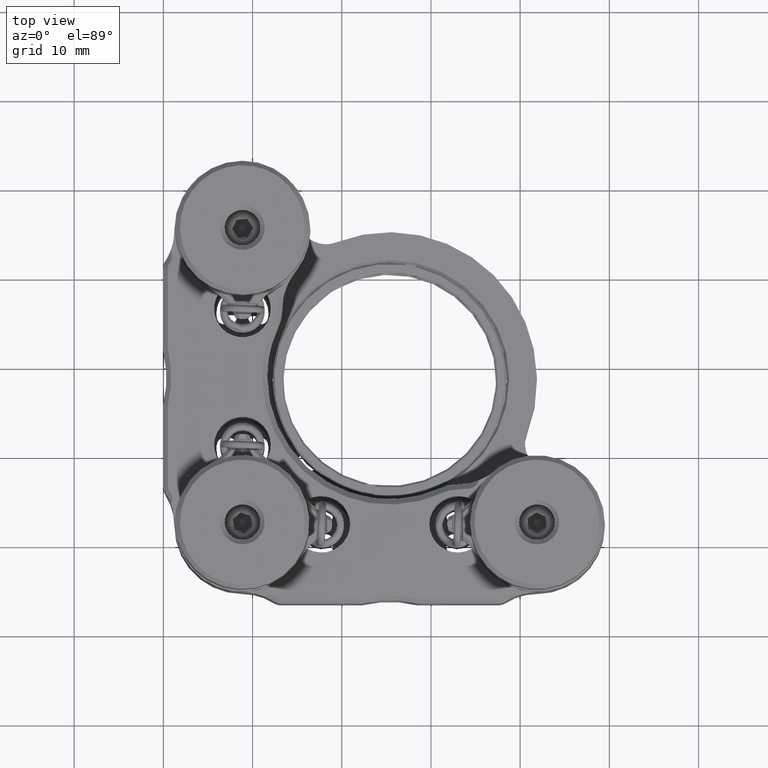
[diagram: clean part render]
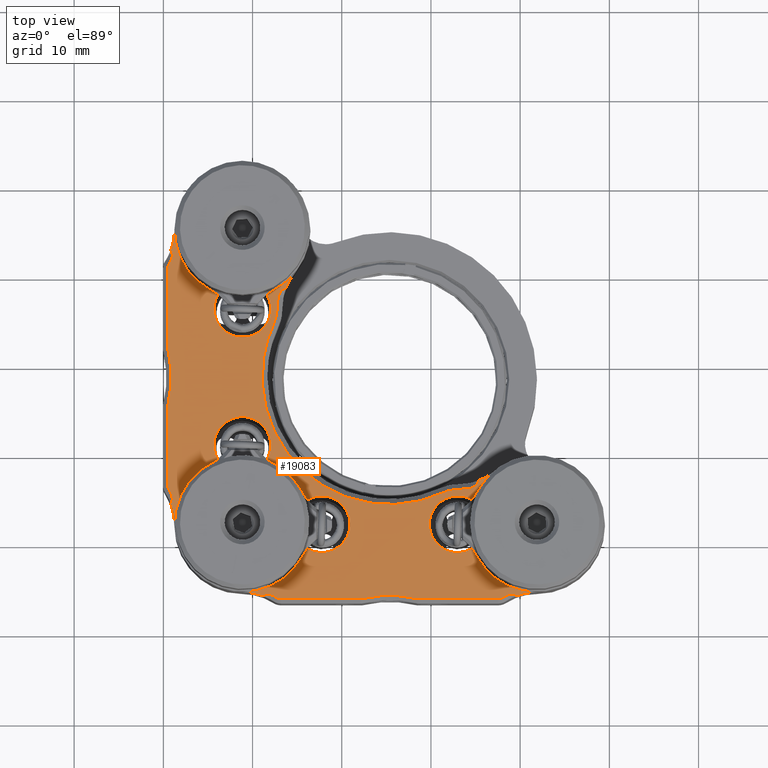
[diagram: same view with one face highlighted and labeled with its STEP entity id]
A machine part, top view. The second image highlights one B-rep face of the part: STEP entity #19083.
In plain terms, the highlighted planar face has unit normal (0, 0, 1).
Its self-contained STEP definition (entity closure, byte-faithful):
#15 = CARTESIAN_POINT ( 'NONE',  ( 12.77524609468842520, 21.84568494314090259, 38.37670909685329690 ) ) ;
#29 = VERTEX_POINT ( 'NONE', #15110 ) ;
#110 = CARTESIAN_POINT ( 'NONE',  ( 0.4990488441847950596, 31.80659387683846262, 38.37670909685321874 ) ) ;
#146 = VERTEX_POINT ( 'NONE', #14021 ) ;
#164 = EDGE_CURVE ( 'NONE', #13545, #18986, #2380, .T. ) ;
#178 = DIRECTION ( 'NONE',  ( 1.000000000000000000, 0.000000000000000000, -0.000000000000000000 ) ) ;
#179 = CARTESIAN_POINT ( 'NONE',  ( 0.4967998813191559226, 16.39472398467108860, 38.37670909685323295 ) ) ;
#199 = VERTEX_POINT ( 'NONE', #13809 ) ;
#221 = CARTESIAN_POINT ( 'NONE',  ( 21.07987460410381786, 14.94534038765587880, 38.37670909685328979 ) ) ;
#260 = CARTESIAN_POINT ( 'NONE',  ( 32.24573960693102492, 15.92250113074362972, 38.37670909685328979 ) ) ;
#274 = CARTESIAN_POINT ( 'NONE',  ( 8.861151733613645831, 36.24409739724833202, 38.37670909685328979 ) ) ;
#321 = CARTESIAN_POINT ( 'NONE',  ( 0.4955960652789220822, 31.87936282421342682, 38.37670909685328979 ) ) ;
#349 = CARTESIAN_POINT ( 'NONE',  ( 12.68769110315134085, 3.882203412879674964, 38.37670909685323295 ) ) ;
#365 = CARTESIAN_POINT ( 'NONE',  ( 37.93145798057660301, 3.824707279502808532, 38.37670909685321163 ) ) ;
#391 = AXIS2_PLACEMENT_3D ( 'NONE', #6771, #10210, #10320 ) ;
#397 = VERTEX_POINT ( 'NONE', #19285 ) ;
#414 = CARTESIAN_POINT ( 'NONE',  ( 22.21644975965272550, 3.755247608644028734, 38.37670909685326848 ) ) ;
#434 = CARTESIAN_POINT ( 'NONE',  ( 15.55098712502350367, 15.76245352512693110, 38.37670909685328979 ) ) ;
#504 = DIRECTION ( 'NONE',  ( 1.000000000000000000, 0.000000000000000000, 0.000000000000000000 ) ) ;
#505 = DIRECTION ( 'NONE',  ( 1.000000000000000000, -3.548724109416808402E-15, 0.000000000000000000 ) ) ;
#532 = CARTESIAN_POINT ( 'NONE',  ( 39.00821912320733986, 4.246503847927646902, 38.37670909685328979 ) ) ;
#610 = ORIENTED_EDGE ( 'NONE', *, *, #5079, .T. ) ;
#688 = CARTESIAN_POINT ( 'NONE',  ( 13.07592408821780339, 3.756373714913398221, 38.37670909685321874 ) ) ;
#702 = EDGE_CURVE ( 'NONE', #17027, #3348, #16617, .T. ) ;
#781 = ORIENTED_EDGE ( 'NONE', *, *, #10060, .T. ) ;
#867 = CARTESIAN_POINT ( 'NONE',  ( 12.78957050157473496, 37.15713069935416968, 38.37670909685328979 ) ) ;
#958 = CARTESIAN_POINT ( 'NONE',  ( 11.60252795403088655, 19.40238537003155983, 38.37670909685328979 ) ) ;
#980 = CARTESIAN_POINT ( 'NONE',  ( 0.6752672816755024288, 26.31757502265822524, 38.37670909685328269 ) ) ;
#994 = CARTESIAN_POINT ( 'NONE',  ( 0.8224864522627175489, 15.62362773138319127, 38.37670909685329690 ) ) ;
#999 = CARTESIAN_POINT ( 'NONE',  ( 2.111692897037557248, 32.75790192313907312, 38.37670909685328979 ) ) ;
#1038 = VECTOR ( 'NONE', #10133, 1000.000000000000000 ) ;
#1040 = CARTESIAN_POINT ( 'NONE',  ( 12.74151121884057858, 36.24592549596479074, 38.37670909685328979 ) ) ;
#1082 = CARTESIAN_POINT ( 'NONE',  ( 12.74151121884057858, 36.24592549596479074, 38.37670909685328979 ) ) ;
#1189 = B_SPLINE_CURVE_WITH_KNOTS ( 'NONE', 3,
 ( #1991, #2436, #6840, #6955, #2215, #10487, #260, #15207, #20039, #18328, #7056, #17040 ),
 .UNSPECIFIED., .F., .F.,
 ( 4, 1, 1, 1, 1, 1, 1, 1, 1, 4 ),
 ( 0.000000000000000000, 0.1099219559163181481, 0.2198965468266057544, 0.3299165306629475714, 0.4399671958950055473, 0.5520299846909049180, 0.6640825208263365642, 0.7761042532496053026, 0.8880793763706528177, 1.000000000000000000 ),
 .UNSPECIFIED. ) ;
#1200 = CARTESIAN_POINT ( 'NONE',  ( 0.6581527438159207044, 31.02488902221040945, 38.37670909685328979 ) ) ;
#1212 = CARTESIAN_POINT ( 'NONE',  ( 0.7417030516559215414, 15.76112852453236179, 38.37670909685657250 ) ) ;
#1226 = CARTESIAN_POINT ( 'NONE',  ( 30.36450516560745072, 15.22380687869121907, 38.37670909685329690 ) ) ;
#1305 = CARTESIAN_POINT ( 'NONE',  ( 0.6687826332372887039, 30.96694763341495360, 38.37670909685328269 ) ) ;
#1312 = VERTEX_POINT ( 'NONE', #8264 ) ;
#1319 = VERTEX_POINT ( 'NONE', #3541 ) ;
#1321 = AXIS2_PLACEMENT_3D ( 'NONE', #5109, #8329, #18616 ) ;
#1335 = EDGE_CURVE ( 'NONE', #3690, #2841, #17337, .T. ) ;
#1344 = CARTESIAN_POINT ( 'NONE',  ( 22.28804929104198607, 3.768691882111749436, 38.37670909685328979 ) ) ;
#1367 = CARTESIAN_POINT ( 'NONE',  ( 22.28804929104198607, 3.768691882111749436, 38.37670909685328979 ) ) ;
#1468 = ORIENTED_EDGE ( 'NONE', *, *, #9411, .T. ) ;
#1491 = CARTESIAN_POINT ( 'NONE',  ( 12.87492903203330386, 37.61571259436085057, 38.37670909685328979 ) ) ;
#1494 = B_SPLINE_CURVE_WITH_KNOTS ( 'NONE', 3,
 ( #9677, #19854, #5150, #4946, #3537 ),
 .UNSPECIFIED., .F., .F.,
 ( 4, 1, 4 ),
 ( 0.000000000000000000, 0.0001717361873785056123, 0.0003066707525924578523 ),
 .UNSPECIFIED. ) ;
#1521 = VERTEX_POINT ( 'NONE', #10734 ) ;
#1529 = B_SPLINE_CURVE_WITH_KNOTS ( 'NONE', 3,
 ( #5155, #13304, #14591, #11685, #1707 ),
 .UNSPECIFIED., .F., .F.,
 ( 4, 1, 4 ),
 ( 7.573910767901059648E-18, 0.0001717361873785664631, 0.0003066707525924598039 ),
 .UNSPECIFIED. ) ;
#1531 = AXIS2_PLACEMENT_3D ( 'NONE', #2359, #2465, #17390 ) ;
#1537 = CARTESIAN_POINT ( 'NONE',  ( 11.75484474074690411, 33.01592660146320668, 38.37670909685328979 ) ) ;
#1576 = ORIENTED_EDGE ( 'NONE', *, *, #6000, .T. ) ;
#1597 = CARTESIAN_POINT ( 'NONE',  ( 0.5290936532490069233, 16.19559772498726602, 38.37670909685323295 ) ) ;
#1621 = AXIS2_PLACEMENT_3D ( 'NONE', #20177, #1816, #5157 ) ;
#1629 = CARTESIAN_POINT ( 'NONE',  ( 0.4970646972821314291, 31.83095322013189943, 38.37670909685355980 ) ) ;
#1639 = CARTESIAN_POINT ( 'NONE',  ( 19.07768561949591302, 15.77850265189336199, 38.37670909685328979 ) ) ;
#1707 = CARTESIAN_POINT ( 'NONE',  ( 0.6630064067489129798, 41.36266049937617595, 38.37670909685328979 ) ) ;
#1724 = CARTESIAN_POINT ( 'NONE',  ( 0.9935581842928256080, 14.98703000765439697, 38.37670909685329690 ) ) ;
#1728 = VERTEX_POINT ( 'NONE', #15112 ) ;
#1749 = EDGE_CURVE ( 'NONE', #5743, #397, #20947, .T. ) ;
#1750 = CARTESIAN_POINT ( 'NONE',  ( 25.38411258108517998, 14.28715967470755643, 38.37670909685328979 ) ) ;
#1807 = VERTEX_POINT ( 'NONE', #3055 ) ;
#1816 = DIRECTION ( 'NONE',  ( 0.000000000000000000, 0.000000000000000000, 1.000000000000000000 ) ) ;
#1849 = CARTESIAN_POINT ( 'NONE',  ( 11.95470148637445362, 33.57522630332723423, 38.37670909685329690 ) ) ;
#1859 = CARTESIAN_POINT ( 'NONE',  ( 5.686151733613645121, 36.24409739724833202, 38.37670909685328979 ) ) ;
#1874 = CARTESIAN_POINT ( 'NONE',  ( 0.5059964593831558499, 25.49355458321001677, 38.37670909685326137 ) ) ;
#1877 = CARTESIAN_POINT ( 'NONE',  ( 38.10971483574125784, 3.915952070383740935, 38.37670909685328979 ) ) ;
#1913 = DIRECTION ( 'NONE',  ( 1.000000000000000000, 0.000000000000000000, 0.000000000000000000 ) ) ;
#1963 = LINE ( 'NONE', #6927, #1038 ) ;
#1983 = CIRCLE ( 'NONE', #10921, 7.619999999999842011 ) ;
#1984 = CARTESIAN_POINT ( 'NONE',  ( 38.09130855231178003, 3.904678758377772230, 38.37670909685321874 ) ) ;
#1991 = CARTESIAN_POINT ( 'NONE',  ( 31.36505517938176268, 15.63730659808388523, 38.37670909685328979 ) ) ;
#2029 = CARTESIAN_POINT ( 'NONE',  ( 22.28021686161072878, 3.766911308594771413, 38.37670909685327558 ) ) ;
#2075 = EDGE_CURVE ( 'NONE', #12817, #1807, #12410, .T. ) ;
#2123 = CARTESIAN_POINT ( 'NONE',  ( 5.212795605734572568, 18.80393278865866691, 38.37670909685328979 ) ) ;
#2137 = CARTESIAN_POINT ( 'NONE',  ( 33.61718067567329626, 16.02056606326949506, 38.37670909685328979 ) ) ;
#2208 = CARTESIAN_POINT ( 'NONE',  ( 37.66637937900900113, 3.756373714913335160, 38.37670909685321874 ) ) ;
#2215 = CARTESIAN_POINT ( 'NONE',  ( 31.88113468643270920, 15.83285988006845990, 38.37670909685328979 ) ) ;
#2228 = VERTEX_POINT ( 'NONE', #958 ) ;
#2230 = CARTESIAN_POINT ( 'NONE',  ( 28.55364821320353386, 3.751994507819634617, 38.37670909685323295 ) ) ;
#2243 = CARTESIAN_POINT ( 'NONE',  ( 29.81615173361346294, 12.11409739724832946, 38.37670909685328979 ) ) ;
#2267 = VERTEX_POINT ( 'NONE', #10537 ) ;
#2343 = CIRCLE ( 'NONE', #18114, 6.477000000000020741 ) ;
#2352 = CARTESIAN_POINT ( 'NONE',  ( 0.5157462184771712810, 31.70719983981903312, 38.37670909685329690 ) ) ;
#2359 = CARTESIAN_POINT ( 'NONE',  ( 8.861151733613644055, 21.00409739724833358, 38.37670909685328979 ) ) ;
#2379 = CARTESIAN_POINT ( 'NONE',  ( 0.4955960652788943266, 25.36883197028323877, 38.37670909685329690 ) ) ;
#2380 = CIRCLE ( 'NONE', #10977, 1.270000000000012452 ) ;
#2414 = DIRECTION ( 'NONE',  ( 0.000000000000000000, 0.000000000000000000, 1.000000000000000000 ) ) ;
#2430 = CARTESIAN_POINT ( 'NONE',  ( 0.4955960652789220822, 40.79002902762141503, 38.37670909685328979 ) ) ;
#2436 = CARTESIAN_POINT ( 'NONE',  ( 31.42067041796330074, 15.66202038868159541, 38.37670909685328979 ) ) ;
#2437 = DIRECTION ( 'NONE',  ( 1.000000000000000000, 1.229331597148903322E-14, 0.000000000000000000 ) ) ;
#2449 = CARTESIAN_POINT ( 'NONE',  ( 38.23412060632940523, 3.994648715290777030, 38.37670909685658671 ) ) ;
#2451 = CARTESIAN_POINT ( 'NONE',  ( 0.9935581842928187246, 42.26116478684227218, 38.37670909685328979 ) ) ;
#2452 = CARTESIAN_POINT ( 'NONE',  ( 22.11588630664790855, 3.748541728913777682, 38.37670909685328979 ) ) ;
#2465 = DIRECTION ( 'NONE',  ( -0.000000000000000000, -0.000000000000000000, -1.000000000000000000 ) ) ;
#2478 = DIRECTION ( 'NONE',  ( -0.000000000000000000, -0.000000000000000000, -1.000000000000000000 ) ) ;
#2507 = CIRCLE ( 'NONE', #11419, 6.477000000000007418 ) ;
#2526 = CARTESIAN_POINT ( 'NONE',  ( 0.6630064067489129798, 41.36266049937617595, 38.37670909685328979 ) ) ;
#2541 = DIRECTION ( 'NONE',  ( 0.000000000000000000, 0.000000000000000000, 1.000000000000000000 ) ) ;
#2586 = ORIENTED_EDGE ( 'NONE', *, *, #7165, .F. ) ;
#2606 = CARTESIAN_POINT ( 'NONE',  ( 0.6909074053572769047, 26.40853253802943357, 38.37670909685328979 ) ) ;
#2638 = CARTESIAN_POINT ( 'NONE',  ( 11.73408434401946643, 2.976503847927701951, 38.37670909685328979 ) ) ;
#2690 = VERTEX_POINT ( 'NONE', #9206 ) ;
#2713 = CARTESIAN_POINT ( 'NONE',  ( 39.62308554504676295, 4.087737074255221259, 38.37670909685328979 ) ) ;
#2723 = AXIS2_PLACEMENT_3D ( 'NONE', #13956, #2478, #2892 ) ;
#2787 = CARTESIAN_POINT ( 'NONE',  ( 12.87492903203330386, 37.61571259436085057, 38.37670909685328979 ) ) ;
#2802 = VERTEX_POINT ( 'NONE', #434 ) ;
#2816 = AXIS2_PLACEMENT_3D ( 'NONE', #13648, #13324, #20195 ) ;
#2833 = CARTESIAN_POINT ( 'NONE',  ( 0.5989083507306648402, 41.24733027897404014, 38.37670909685321874 ) ) ;
#2841 = VERTEX_POINT ( 'NONE', #9254 ) ;
#2892 = DIRECTION ( 'NONE',  ( 1.000000000000000000, 1.606969408037802636E-15, 0.000000000000000000 ) ) ;
#2901 = DIRECTION ( 'NONE',  ( 1.000000000000000000, -1.419489643766718154E-14, 0.000000000000000000 ) ) ;
#2916 = CARTESIAN_POINT ( 'NONE',  ( 0.6657276340073603471, 30.98382758411866433, 38.37670909685328979 ) ) ;
#2930 = CARTESIAN_POINT ( 'NONE',  ( 0.5483680469870982899, 41.11906931882678151, 38.37670909685322584 ) ) ;
#2975 = CIRCLE ( 'NONE', #20469, 1.270000000000015561 ) ;
#3010 = DIRECTION ( 'NONE',  ( -0.000000000000000000, -0.000000000000000000, -1.000000000000000000 ) ) ;
#3055 = CARTESIAN_POINT ( 'NONE',  ( 16.14943970639668080, 9.372721176831099399, 38.37670909685328979 ) ) ;
#3079 = CARTESIAN_POINT ( 'NONE',  ( 23.63043236707065375, 4.018793530060095875, 38.37670909685328269 ) ) ;
#3108 = CARTESIAN_POINT ( 'NONE',  ( 0.5140622598650569364, 16.26245869600330707, 38.37670909685321874 ) ) ;
#3220 = DIRECTION ( 'NONE',  ( -0.000000000000000000, -0.000000000000000000, -1.000000000000000000 ) ) ;
#3243 = CARTESIAN_POINT ( 'NONE',  ( 0.5018832821274912259, 31.78187945392570768, 38.37670909685331821 ) ) ;
#3252 = CARTESIAN_POINT ( 'NONE',  ( 11.61439956670863261, 24.69039808305371864, 38.37670909685328269 ) ) ;
#3286 = CARTESIAN_POINT ( 'NONE',  ( 25.00092062718413288, 4.125670057445336880, 38.37670909685328269 ) ) ;
#3303 = DIRECTION ( 'NONE',  ( 1.000000000000000000, 4.370956789862820361E-15, 0.000000000000000000 ) ) ;
#3304 = CARTESIAN_POINT ( 'NONE',  ( 12.92263567735286145, 37.85627406329982847, 38.37670909685328979 ) ) ;
#3348 = VERTEX_POINT ( 'NONE', #1344 ) ;
#3350 = CARTESIAN_POINT ( 'NONE',  ( 0.4958245598883168626, 31.85528042066255949, 38.37670909685322584 ) ) ;
#3363 = CARTESIAN_POINT ( 'NONE',  ( 10.99774249357643363, 29.00008945594158050, 38.37670909685328269 ) ) ;
#3466 = CARTESIAN_POINT ( 'NONE',  ( 12.35355493102227875, 22.65227286820592312, 38.37670909685330400 ) ) ;
#3468 = EDGE_CURVE ( 'NONE', #6718, #10434, #5270, .T. ) ;
#3497 = DIRECTION ( 'NONE',  ( -0.000000000000000000, -0.000000000000000000, -1.000000000000000000 ) ) ;
#3506 = CARTESIAN_POINT ( 'NONE',  ( 24.31165759071876309, 4.089668728367641393, 38.37670909685327558 ) ) ;
#3523 = CIRCLE ( 'NONE', #18276, 6.477000000000031399 ) ;
#3526 = CARTESIAN_POINT ( 'NONE',  ( 11.73408434401946643, 2.976503847927701951, 38.37670909685328979 ) ) ;
#3537 = CARTESIAN_POINT ( 'NONE',  ( 12.63258863148555555, 3.915952070383796446, 38.37670909685328979 ) ) ;
#3541 = CARTESIAN_POINT ( 'NONE',  ( 0.8224864522627211016, 41.62456706311347432, 38.37670909685328979 ) ) ;
#3562 = ORIENTED_EDGE ( 'NONE', *, *, #5523, .F. ) ;
#3607 = CARTESIAN_POINT ( 'NONE',  ( 37.60052514619064112, 3.749745544953984489, 38.37670909685321874 ) ) ;
#3628 = CARTESIAN_POINT ( 'NONE',  ( 8.861151733613136017, -1.982902602751669630, 38.37670909685328979 ) ) ;
#3634 = EDGE_CURVE ( 'NONE', #11502, #18798, #9074, .T. ) ;
#3636 = ORIENTED_EDGE ( 'NONE', *, *, #17006, .F. ) ;
#3690 = VERTEX_POINT ( 'NONE', #15504 ) ;
#3715 = ORIENTED_EDGE ( 'NONE', *, *, #7890, .F. ) ;
#3726 = CARTESIAN_POINT ( 'NONE',  ( 12.50950786149193483, 18.80393278865851769, 38.37670909685328979 ) ) ;
#3738 = CARTESIAN_POINT ( 'NONE',  ( 28.47886205368861567, 3.763109335661994237, 38.37670909685329690 ) ) ;
#3761 = CARTESIAN_POINT ( 'NONE',  ( 22.14111822253773454, 3.748792489058386135, 38.37670909685327558 ) ) ;
#3786 = B_SPLINE_CURVE_WITH_KNOTS ( 'NONE', 3,
 ( #18252, #18041, #11681, #21249, #16316, #12990, #1597, #3108, #8363, #179, #14686, #6752 ),
 .UNSPECIFIED., .F., .F.,
 ( 4, 1, 1, 1, 1, 1, 1, 1, 1, 4 ),
 ( 7.589415207398531038E-19, 6.788893391202587685E-05, 0.0001353486219821840517, 0.0002025145720739922556, 0.0002695107963978422448, 0.0003364539762345038925, 0.0004022610529734953850, 0.0004682380276493931359, 0.0005345027875534878780, 0.0006011840429156226030 ),
 .UNSPECIFIED. ) ;
#3823 = CARTESIAN_POINT ( 'NONE',  ( 0.5157462184768729641, 25.54099495467687575, 38.37670909685328979 ) ) ;
#3838 = ORIENTED_EDGE ( 'NONE', *, *, #8885, .F. ) ;
#3865 = DIRECTION ( 'NONE',  ( -0.000000000000000000, -0.000000000000000000, -1.000000000000000000 ) ) ;
#3889 = ORIENTED_EDGE ( 'NONE', *, *, #19885, .T. ) ;
#3950 = CARTESIAN_POINT ( 'NONE',  ( 0.4955960652789220822, 31.87936282421342682, 38.37670909685328979 ) ) ;
#3981 = ORIENTED_EDGE ( 'NONE', *, *, #16797, .F. ) ;
#3989 = B_SPLINE_CURVE_WITH_KNOTS ( 'NONE', 3,
 ( #1491, #3304, #17837, #11564, #12978, #9557 ),
 .UNSPECIFIED., .F., .F.,
 ( 4, 2, 4 ),
 ( 0.000000000000000000, 0.5000000000000000000, 1.000000000000000000 ),
 .UNSPECIFIED. ) ;
#4058 = ORIENTED_EDGE ( 'NONE', *, *, #7532, .F. ) ;
#4168 = CARTESIAN_POINT ( 'NONE',  ( 28.57800755649700264, 3.750010360916995467, 38.37670909685355269 ) ) ;
#4224 = CARTESIAN_POINT ( 'NONE',  ( 0.7085768433675578848, 26.51623167980774554, 38.37670909685329690 ) ) ;
#4266 = ORIENTED_EDGE ( 'NONE', *, *, #164, .F. ) ;
#4310 = FACE_OUTER_BOUND ( 'NONE', #12029, .T. ) ;
#4328 = CARTESIAN_POINT ( 'NONE',  ( 0.7755347312584568442, 30.24305909778279400, 38.37670909685330400 ) ) ;
#4364 = EDGE_CURVE ( 'NONE', #20085, #7042, #18583, .T. ) ;
#4370 = CIRCLE ( 'NONE', #12607, 6.477000000000007418 ) ;
#4416 = VERTEX_POINT ( 'NONE', #19597 ) ;
#4444 = VERTEX_POINT ( 'NONE', #17698 ) ;
#4455 = CARTESIAN_POINT ( 'NONE',  ( 0.7934872215583079758, 15.67298709472957796, 38.37670909685657961 ) ) ;
#4468 = CARTESIAN_POINT ( 'NONE',  ( 30.38423956325754105, 15.23141819904170369, 38.37670909685328269 ) ) ;
#4484 = DIRECTION ( 'NONE',  ( -0.000000000000000000, -0.000000000000000000, -1.000000000000000000 ) ) ;
#4494 = CIRCLE ( 'NONE', #12350, 7.619999999999767404 ) ;
#4547 = CIRCLE ( 'NONE', #11695, 6.477000000000007418 ) ;
#4554 = CARTESIAN_POINT ( 'NONE',  ( 0.7420473664653468582, 26.73674937535789198, 38.37670909685328979 ) ) ;
#4601 = CARTESIAN_POINT ( 'NONE',  ( 15.61061057018902787, 32.75790192313907312, 38.37670909685328979 ) ) ;
#4632 = ORIENTED_EDGE ( 'NONE', *, *, #4645, .T. ) ;
#4645 = EDGE_CURVE ( 'NONE', #17420, #8077, #11937, .T. ) ;
#4648 = CARTESIAN_POINT ( 'NONE',  ( 0.6707767699948714579, 30.95585384594103928, 38.37670909685329690 ) ) ;
#4661 = CARTESIAN_POINT ( 'NONE',  ( 0.4955960652789220822, 40.79002902762141503, 38.37670909685328979 ) ) ;
#4666 = B_SPLINE_CURVE_WITH_KNOTS ( 'NONE', 3,
 ( #994, #4455, #1212, #15936, #17563 ),
 .UNSPECIFIED., .F., .F.,
 ( 4, 1, 4 ),
 ( 6.080238262877610799E-18, 0.0001717361873784623526, 0.0003066707525924521603 ),
 .UNSPECIFIED. ) ;
#4672 = CARTESIAN_POINT ( 'NONE',  ( 11.35502292562923721, 25.75232571216070454, 38.37670909685328979 ) ) ;
#4700 = CARTESIAN_POINT ( 'NONE',  ( 12.61449817399354245, 35.13589714936236419, 38.37670909685328979 ) ) ;
#4733 = CARTESIAN_POINT ( 'NONE',  ( 19.80578326939348344, 36.24925358624009419, 38.37670909685328979 ) ) ;
#4752 = VERTEX_POINT ( 'NONE', #2526 ) ;
#4771 = CARTESIAN_POINT ( 'NONE',  ( 19.40501334108996545, 15.62288298092781957, 38.37670909685328979 ) ) ;
#4776 = CIRCLE ( 'NONE', #16775, 3.175000000000000711 ) ;
#4880 = CARTESIAN_POINT ( 'NONE',  ( 11.94067263501937504, 33.53824504982272714, 38.37670909685328979 ) ) ;
#4918 = VERTEX_POINT ( 'NONE', #5065 ) ;
#4946 = CARTESIAN_POINT ( 'NONE',  ( 12.59457586785475058, 3.939998197404931179, 38.37670909685657961 ) ) ;
#4980 = CARTESIAN_POINT ( 'NONE',  ( 14.74154866421119259, 19.02587353099097101, 38.37670909685328979 ) ) ;
#5035 = CARTESIAN_POINT ( 'NONE',  ( 34.60385525189228417, 16.17568582302490654, 38.37670909685329690 ) ) ;
#5059 = ORIENTED_EDGE ( 'NONE', *, *, #20229, .F. ) ;
#5065 = CARTESIAN_POINT ( 'NONE',  ( 38.10971483574125784, 3.915952070383740935, 38.37670909685328979 ) ) ;
#5079 = EDGE_CURVE ( 'NONE', #17737, #14105, #2975, .T. ) ;
#5082 = EDGE_CURVE ( 'NONE', #17811, #8068, #19770, .T. ) ;
#5088 = CARTESIAN_POINT ( 'NONE',  ( 13.32398532527555268, 20.89903289220994864, 38.37670909685328979 ) ) ;
#5109 = CARTESIAN_POINT ( 'NONE',  ( -0.2764418157071950599, 42.26116478684227218, 38.37670909685328979 ) ) ;
#5110 = ORIENTED_EDGE ( 'NONE', *, *, #10107, .T. ) ;
#5112 = DIRECTION ( 'NONE',  ( 1.000000000000000000, 0.000000000000000000, 0.000000000000000000 ) ) ;
#5143 = CARTESIAN_POINT ( 'NONE',  ( 35.18016554447005717, 16.60608547644397959, 38.37670909685328979 ) ) ;
#5150 = CARTESIAN_POINT ( 'NONE',  ( 12.50818286089736553, 3.994648715290856966, 38.37670909685658671 ) ) ;
#5155 = CARTESIAN_POINT ( 'NONE',  ( 0.8224864522627211016, 41.62456706311347432, 38.37670909685328979 ) ) ;
#5157 = DIRECTION ( 'NONE',  ( 1.000000000000000000, 0.000000000000000000, 0.000000000000000000 ) ) ;
#5208 = ORIENTED_EDGE ( 'NONE', *, *, #10823, .T. ) ;
#5214 = CARTESIAN_POINT ( 'NONE',  ( 12.63258863148555555, 3.915952070383796446, 38.37670909685328979 ) ) ;
#5226 = CARTESIAN_POINT ( 'NONE',  ( 37.99438461533913625, 3.851854014365486911, 38.37670909685322584 ) ) ;
#5228 = CARTESIAN_POINT ( 'NONE',  ( 0.6292577492447939402, 41.30755802771040663, 38.37670909685322584 ) ) ;
#5244 = DIRECTION ( 'NONE',  ( -0.000000000000000000, -0.000000000000000000, -1.000000000000000000 ) ) ;
#5270 = CIRCLE ( 'NONE', #12821, 3.175000000000000711 ) ;
#5307 = ORIENTED_EDGE ( 'NONE', *, *, #6705, .T. ) ;
#5309 = CARTESIAN_POINT ( 'NONE',  ( 0.6630064067489199742, 15.88553429512048609, 38.37670909685328979 ) ) ;
#5365 = CARTESIAN_POINT ( 'NONE',  ( 22.16661395337649054, 3.750153826447390149, 38.37670909685326848 ) ) ;
#5366 = CIRCLE ( 'NONE', #19747, 1.270000000000012452 ) ;
#5390 = DIRECTION ( 'NONE',  ( 1.000000000000000000, 0.000000000000000000, 0.000000000000000000 ) ) ;
#5414 = CARTESIAN_POINT ( 'NONE',  ( 8.861151733613645831, 45.13409739724845338, 38.37670909685328979 ) ) ;
#5426 = CARTESIAN_POINT ( 'NONE',  ( 0.4955960652788943266, 25.36883197028323877, 38.37670909685329690 ) ) ;
#5430 = CARTESIAN_POINT ( 'NONE',  ( 37.53708336398648981, 3.748541728913728832, 38.37670909685328979 ) ) ;
#5435 = CARTESIAN_POINT ( 'NONE',  ( 0.6517330947429474941, 41.34425421594671235, 38.37670909685322584 ) ) ;
#5451 = DIRECTION ( 'NONE',  ( -0.000000000000000000, -0.000000000000000000, -1.000000000000000000 ) ) ;
#5463 = CARTESIAN_POINT ( 'NONE',  ( 33.06035827406286387, 15.99498661411283962, 38.37670909685328979 ) ) ;
#5466 = CARTESIAN_POINT ( 'NONE',  ( 8.861151733613644055, 21.00409739724833358, 38.37670909685328979 ) ) ;
#5483 = CARTESIAN_POINT ( 'NONE',  ( 13.78516344865819043, 38.63748849390084672, 38.37670909685328979 ) ) ;
#5523 = EDGE_CURVE ( 'NONE', #6387, #10245, #14287, .T. ) ;
#5528 = ORIENTED_EDGE ( 'NONE', *, *, #1749, .T. ) ;
#5534 = CARTESIAN_POINT ( 'NONE',  ( 37.86612365519187051, 3.801313710621909703, 38.37670909685322584 ) ) ;
#5537 = ORIENTED_EDGE ( 'NONE', *, *, #20611, .F. ) ;
#5557 = EDGE_CURVE ( 'NONE', #2267, #9488, #12232, .T. ) ;
#5567 = CARTESIAN_POINT ( 'NONE',  ( 33.39715813966010671, 16.00500017527552643, 38.37670909685329690 ) ) ;
#5599 = DIRECTION ( 'NONE',  ( -0.000000000000000000, -0.000000000000000000, 1.000000000000000000 ) ) ;
#5641 = EDGE_CURVE ( 'NONE', #7956, #2802, #4370, .T. ) ;
#5650 = ORIENTED_EDGE ( 'NONE', *, *, #12155, .T. ) ;
#5690 = CARTESIAN_POINT ( 'NONE',  ( 26.39334182759852609, 4.092731769619485149, 38.37670909685328269 ) ) ;
#5743 = VERTEX_POINT ( 'NONE', #14019 ) ;
#5765 = CARTESIAN_POINT ( 'NONE',  ( 41.88115173361342869, 12.11409739724833301, 38.37670909685328979 ) ) ;
#5912 = B_SPLINE_CURVE_WITH_KNOTS ( 'NONE', 3,
 ( #10190, #5463, #12001, #5567, #2137, #8791, #16743, #15337, #18253 ),
 .UNSPECIFIED., .F., .F.,
 ( 4, 1, 1, 1, 1, 1, 4 ),
 ( 0.000000000000000000, 0.1464167915703638023, 0.2930927779366250263, 0.4399209478628879344, 0.6268390282286024906, 0.8136058664721685929, 1.000000000000000000 ),
 .UNSPECIFIED. ) ;
#5938 = CARTESIAN_POINT ( 'NONE',  ( 0.8719724328562286075, 29.14108786175366461, 38.37670909685328979 ) ) ;
#5962 = CARTESIAN_POINT ( 'NONE',  ( 13.18402872158956818, 3.748943838127289485, 38.37670909685322584 ) ) ;
#5973 = DIRECTION ( 'NONE',  ( 1.000000000000000000, -1.092739197465706273E-15, 0.000000000000000000 ) ) ;
#6000 = EDGE_CURVE ( 'NONE', #12463, #16249, #19124, .T. ) ;
#6017 = ORIENTED_EDGE ( 'NONE', *, *, #12869, .T. ) ;
#6111 = CARTESIAN_POINT ( 'NONE',  ( 39.00821912320733986, 2.976503847927632673, 38.37670909685328979 ) ) ;
#6140 = CARTESIAN_POINT ( 'NONE',  ( 0.6818391422368104138, 26.35532289363947456, 38.37670909685328269 ) ) ;
#6153 = CARTESIAN_POINT ( 'NONE',  ( 0.4955960652788873877, 16.45816576687524702, 38.37670909685329690 ) ) ;
#6189 = ORIENTED_EDGE ( 'NONE', *, *, #14504, .F. ) ;
#6215 = EDGE_CURVE ( 'NONE', #1728, #6387, #11897, .T. ) ;
#6254 = CARTESIAN_POINT ( 'NONE',  ( 0.5157462184771712810, 31.70719983981903312, 38.37670909685329690 ) ) ;
#6324 = EDGE_CURVE ( 'NONE', #3348, #9043, #16540, .T. ) ;
#6330 = EDGE_CURVE ( 'NONE', #12463, #20085, #2343, .T. ) ;
#6332 = DIRECTION ( 'NONE',  ( -0.000000000000000000, -0.000000000000000000, -1.000000000000000000 ) ) ;
#6387 = VERTEX_POINT ( 'NONE', #7413 ) ;
#6412 = CARTESIAN_POINT ( 'NONE',  ( 27.77511441235467871, 3.918574153126897830, 38.37670909685328269 ) ) ;
#6443 = DIRECTION ( 'NONE',  ( 1.000000000000000000, -2.142625877383727802E-14, 0.000000000000000000 ) ) ;
#6469 = CIRCLE ( 'NONE', #1321, 1.270000000000014229 ) ;
#6472 = ORIENTED_EDGE ( 'NONE', *, *, #1335, .T. ) ;
#6477 = CARTESIAN_POINT ( 'NONE',  ( 26.47055007258569148, 14.34424125510832759, 38.37670909685328979 ) ) ;
#6493 = ORIENTED_EDGE ( 'NONE', *, *, #15796, .F. ) ;
#6516 = CIRCLE ( 'NONE', #17514, 3.175000000000000711 ) ;
#6572 = ORIENTED_EDGE ( 'NONE', *, *, #13435, .T. ) ;
#6580 = B_SPLINE_CURVE_WITH_KNOTS ( 'NONE', 3,
 ( #3823, #10373, #11858, #1874, #15301, #15199, #10266, #11960, #6717, #5426 ),
 .UNSPECIFIED., .F., .F.,
 ( 4, 1, 1, 1, 1, 1, 1, 4 ),
 ( 0.000000000000000000, 2.433994098064160680E-05, 4.863949341340166181E-05, 7.291449240891329973E-05, 9.718058732113913885E-05, 0.0001226095285266365776, 0.0001480637752872296061, 0.0001735615155472826267 ),
 .UNSPECIFIED. ) ;
#6705 = EDGE_CURVE ( 'NONE', #10925, #146, #15490, .T. ) ;
#6717 = CARTESIAN_POINT ( 'NONE',  ( 0.4956796995474300194, 25.37724739386226602, 38.37670909685325427 ) ) ;
#6718 = VERTEX_POINT ( 'NONE', #15054 ) ;
#6741 = CARTESIAN_POINT ( 'NONE',  ( 29.50495625950411593, 18.86355623382385360, 38.37670909685328979 ) ) ;
#6752 = CARTESIAN_POINT ( 'NONE',  ( 0.4955960652788873877, 16.45816576687524702, 38.37670909685329690 ) ) ;
#6771 = CARTESIAN_POINT ( 'NONE',  ( 32.99115173361346365, 12.11409739724832946, 38.37670909685328979 ) ) ;
#6795 = CARTESIAN_POINT ( 'NONE',  ( 27.55922645416164940, 14.48479695365101527, 38.37670909685328979 ) ) ;
#6825 = CARTESIAN_POINT ( 'NONE',  ( 39.00821912320733986, 2.976503847927632673, 38.37670909685328979 ) ) ;
#6840 = CARTESIAN_POINT ( 'NONE',  ( 31.53192752590931036, 15.71145980382054930, 38.37670909685328269 ) ) ;
#6902 = CARTESIAN_POINT ( 'NONE',  ( 0.4956722723001658615, 31.87133091377226179, 38.37670909685326848 ) ) ;
#6920 = ORIENTED_EDGE ( 'NONE', *, *, #10431, .T. ) ;
#6927 = CARTESIAN_POINT ( 'NONE',  ( 32.13840208789036268, 3.748541728913777682, 38.37670909685328979 ) ) ;
#6932 = CARTESIAN_POINT ( 'NONE',  ( 12.74791885188774287, 3.851854014365566847, 38.37670909685321874 ) ) ;
#6955 = CARTESIAN_POINT ( 'NONE',  ( 31.70479714206517130, 15.77587580167016590, 38.37670909685328979 ) ) ;
#6985 = CARTESIAN_POINT ( 'NONE',  ( 22.19174876848352085, 3.752298409833426440, 38.37670909685326848 ) ) ;
#7008 = DIRECTION ( 'NONE',  ( 0.000000000000000000, 0.000000000000000000, 1.000000000000000000 ) ) ;
#7042 = VERTEX_POINT ( 'NONE', #7836 ) ;
#7056 = CARTESIAN_POINT ( 'NONE',  ( 32.93101687600100291, 15.99358734427168471, 38.37670909685329690 ) ) ;
#7070 = DIRECTION ( 'NONE',  ( 1.000000000000000000, 0.000000000000000000, 0.000000000000000000 ) ) ;
#7092 = CARTESIAN_POINT ( 'NONE',  ( 0.4955960652788873877, 16.45816576687524702, 38.37670909685329690 ) ) ;
#7127 = AXIS2_PLACEMENT_3D ( 'NONE', #20580, #20694, #5973 ) ;
#7165 = EDGE_CURVE ( 'NONE', #2690, #199, #18130, .T. ) ;
#7214 = B_SPLINE_CURVE_WITH_KNOTS ( 'NONE', 3,
 ( #1877, #1984, #16612, #5226, #365, #5534, #20355, #15084, #2208, #3607, #20034, #5430 ),
 .UNSPECIFIED., .F., .F.,
 ( 4, 1, 1, 1, 1, 1, 1, 1, 1, 4 ),
 ( 0.000000000000000000, 6.788893391202076755E-05, 0.0001353486219821802298, 0.0002025145720739760197, 0.0002695107963978333001, 0.0003364539762344799317, 0.0004022610529734794473, 0.0004682380276493770354, 0.0005345027875534671697, 0.0006011840429156051473 ),
 .UNSPECIFIED. ) ;
#7262 = CARTESIAN_POINT ( 'NONE',  ( 13.20522010324032003, 3.748541728913791449, 38.37670909685328979 ) ) ;
#7315 = DIRECTION ( 'NONE',  ( -0.000000000000000000, -0.000000000000000000, -1.000000000000000000 ) ) ;
#7403 = B_SPLINE_CURVE_WITH_KNOTS ( 'NONE', 3,
 ( #6254, #16026, #12806, #18929, #1200, #2916, #1305, #4648, #17325, #15706, #14294, #20657, #14200, #4328, #10869, #20963, #5938, #20853, #12587, #14399, #12485, #9478, #15599, #14098, #7866, #4554, #4224, #2606, #6140, #17436, #980, #12694, #11089, #19350, #11187 ),
 .UNSPECIFIED., .F., .F.,
 ( 4, 1, 1, 1, 1, 2, 2, 1, 1, 2, 2, 2, 1, 1, 1, 2, 2, 1, 1, 1, 1, 2, 2, 4 ),
 ( 0.000000000000000000, 0.06250000000000655032, 0.09375000000001146305, 0.1093750000000129341, 0.1171875000000147521, 0.1210937500000156680, 0.1250000000000165701, 0.1875000000000206779, 0.2187500000000227318, 0.2343750000000237588, 0.2500000000000247580, 0.5000000000000361933, 0.6250000000000410783, 0.6875000000000435207, 0.7187500000000438538, 0.7343750000000449640, 0.7500000000000460743, 0.8125000000000470735, 0.8437500000000475175, 0.8593750000000469624, 0.8671875000000467404, 0.8710937500000456302, 0.8750000000000446310, 1.000000000000000000 ),
 .UNSPECIFIED. ) ;
#7413 = CARTESIAN_POINT ( 'NONE',  ( 5.212795605734617865, 38.44426200583820474, 38.37670909685328979 ) ) ;
#7442 = CARTESIAN_POINT ( 'NONE',  ( 31.36505517938176268, 15.63730659808388523, 38.37670909685328979 ) ) ;
#7532 = EDGE_CURVE ( 'NONE', #14518, #4918, #16868, .T. ) ;
#7546 = AXIS2_PLACEMENT_3D ( 'NONE', #11544, #21026, #16286 ) ;
#7566 = EDGE_CURVE ( 'NONE', #10542, #4444, #1983, .T. ) ;
#7573 = DIRECTION ( 'NONE',  ( 1.000000000000000000, 0.000000000000000000, 0.000000000000000000 ) ) ;
#7583 = CARTESIAN_POINT ( 'NONE',  ( 30.46381307168684671, 15.26247476947826343, 38.37670909685328979 ) ) ;
#7697 = LINE ( 'NONE', #16059, #16165 ) ;
#7836 = CARTESIAN_POINT ( 'NONE',  ( 41.88115173361350685, 4.494097397248490111, 38.37670909685328979 ) ) ;
#7866 = CARTESIAN_POINT ( 'NONE',  ( 0.7675334955387984603, 26.93454067781837935, 38.37670909685328979 ) ) ;
#7890 = EDGE_CURVE ( 'NONE', #16860, #8566, #6469, .T. ) ;
#7892 = CARTESIAN_POINT ( 'NONE',  ( 30.84975133655355251, 15.41868329430725915, 38.37670909685329690 ) ) ;
#7921 = CARTESIAN_POINT ( 'NONE',  ( 28.45425417618413633, 3.768691882111999014, 38.37670909685328979 ) ) ;
#7956 = VERTEX_POINT ( 'NONE', #10558 ) ;
#7995 = CIRCLE ( 'NONE', #14167, 7.619999999999603091 ) ;
#8008 = B_SPLINE_CURVE_WITH_KNOTS ( 'NONE', 3,
 ( #19402, #4700, #14554, #9646 ),
 .UNSPECIFIED., .F., .F.,
 ( 4, 4 ),
 ( 0.000000000000000000, 1.000000000000000000 ),
 .UNSPECIFIED. ) ;
#8016 = DIRECTION ( 'NONE',  ( -1.000000000000000000, 0.000000000000000000, 0.000000000000000000 ) ) ;
#8040 = ORIENTED_EDGE ( 'NONE', *, *, #7566, .F. ) ;
#8059 = DIRECTION ( 'NONE',  ( -0.000000000000000000, -0.000000000000000000, -1.000000000000000000 ) ) ;
#8062 = EDGE_CURVE ( 'NONE', #19382, #29, #7403, .T. ) ;
#8068 = VERTEX_POINT ( 'NONE', #2713 ) ;
#8077 = VERTEX_POINT ( 'NONE', #9276 ) ;
#8085 = CARTESIAN_POINT ( 'NONE',  ( 0.5290936532490100319, 41.05259706950933207, 38.37670909685321874 ) ) ;
#8097 = CARTESIAN_POINT ( 'NONE',  ( 11.96074622682672839, 33.59106138881092107, 38.37670909685330400 ) ) ;
#8148 = B_SPLINE_CURVE_WITH_KNOTS ( 'NONE', 3,
 ( #19928, #5435, #5228, #2833, #12599, #2930, #8085, #10993, #11306, #16141, #9391, #4661 ),
 .UNSPECIFIED., .F., .F.,
 ( 4, 1, 1, 1, 1, 1, 1, 1, 1, 4 ),
 ( 7.410741937918042371E-18, 6.788893391203133852E-05, 0.0001353486219821869519, 0.0002025145720739857504, 0.0002695107963978392632, 0.0003364539762344835637, 0.0004022610529734882835, 0.0004682380276493808844, 0.0005345027875534732412, 0.0006011840429156051473 ),
 .UNSPECIFIED. ) ;
#8195 = CARTESIAN_POINT ( 'NONE',  ( 11.85861473182862902, 33.31544134893639608, 38.37670909685328979 ) ) ;
#8226 = DIRECTION ( 'NONE',  ( -0.000000000000000000, -0.000000000000000000, -1.000000000000000000 ) ) ;
#8235 = CARTESIAN_POINT ( 'NONE',  ( 22.50989134016566950, 3.817717048794514678, 38.37670909685327558 ) ) ;
#8257 = CARTESIAN_POINT ( 'NONE',  ( 2.111692897037557248, 24.49029287135772037, 38.37670909685328979 ) ) ;
#8264 = CARTESIAN_POINT ( 'NONE',  ( 15.55098712502337222, 8.465741269369299715, 38.37670909685328979 ) ) ;
#8292 = CIRCLE ( 'NONE', #20999, 3.175000000000000711 ) ;
#8304 = CARTESIAN_POINT ( 'NONE',  ( 11.67418718407332356, 32.75560974581304663, 38.37670909685331111 ) ) ;
#8329 = DIRECTION ( 'NONE',  ( -0.000000000000000000, -0.000000000000000000, 1.000000000000000000 ) ) ;
#8363 = CARTESIAN_POINT ( 'NONE',  ( 0.5034280512784787831, 16.32886975185273570, 38.37670909685323295 ) ) ;
#8400 = CARTESIAN_POINT ( 'NONE',  ( 19.89970389009817353, 15.39918467721070705, 38.37670909685329690 ) ) ;
#8453 = EDGE_CURVE ( 'NONE', #14518, #17811, #14032, .T. ) ;
#8455 = DIRECTION ( 'NONE',  ( 0.000000000000000000, 0.000000000000000000, 1.000000000000000000 ) ) ;
#8467 = VERTEX_POINT ( 'NONE', #2787 ) ;
#8533 = ORIENTED_EDGE ( 'NONE', *, *, #17660, .T. ) ;
#8548 = EDGE_CURVE ( 'NONE', #10542, #5743, #11956, .T. ) ;
#8566 = VERTEX_POINT ( 'NONE', #19006 ) ;
#8584 = CARTESIAN_POINT ( 'NONE',  ( 22.26456499951148160, 3.763353116160444767, 38.37670909685326848 ) ) ;
#8595 = AXIS2_PLACEMENT_3D ( 'NONE', #11924, #5599, #5390 ) ;
#8637 = DIRECTION ( 'NONE',  ( -1.000000000000000000, 0.000000000000000000, 0.000000000000000000 ) ) ;
#8660 = EDGE_CURVE ( 'NONE', #8467, #14017, #3989, .T. ) ;
#8724 = DIRECTION ( 'NONE',  ( 0.000000000000000000, 0.000000000000000000, 1.000000000000000000 ) ) ;
#8791 = CARTESIAN_POINT ( 'NONE',  ( 33.85482317682605924, 16.04543718958182552, 38.37670909685327558 ) ) ;
#8885 = EDGE_CURVE ( 'NONE', #1312, #1807, #14271, .T. ) ;
#8896 = EDGE_CURVE ( 'NONE', #4416, #13545, #5366, .T. ) ;
#8897 = DIRECTION ( 'NONE',  ( -1.000000000000000000, 0.000000000000000000, 0.000000000000000000 ) ) ;
#8963 = CIRCLE ( 'NONE', #15113, 3.175000000000000711 ) ;
#8986 = VERTEX_POINT ( 'NONE', #1040 ) ;
#9000 = DIRECTION ( 'NONE',  ( 0.000000000000000000, 0.000000000000000000, 1.000000000000000000 ) ) ;
#9033 = CARTESIAN_POINT ( 'NONE',  ( 22.11588630664790855, 3.748541728913777682, 38.37670909685328979 ) ) ;
#9043 = VERTEX_POINT ( 'NONE', #2452 ) ;
#9074 = LINE ( 'NONE', #6153, #15197 ) ;
#9096 = CARTESIAN_POINT ( 'NONE',  ( 34.81555263887436524, 16.28089020465142767, 38.37670909685328269 ) ) ;
#9200 = DIRECTION ( 'NONE',  ( 1.000000000000000000, 0.000000000000000000, 0.000000000000000000 ) ) ;
#9206 = CARTESIAN_POINT ( 'NONE',  ( 37.53708336398648981, 3.748541728913728832, 38.37670909685328979 ) ) ;
#9217 = VECTOR ( 'NONE', #16729, 1000.000000000000000 ) ;
#9233 = EDGE_CURVE ( 'NONE', #20543, #2267, #19178, .T. ) ;
#9254 = CARTESIAN_POINT ( 'NONE',  ( 5.686151733613641568, 21.00409739724833358, 38.37670909685328979 ) ) ;
#9266 = EDGE_CURVE ( 'NONE', #14105, #20197, #11971, .T. ) ;
#9276 = CARTESIAN_POINT ( 'NONE',  ( 13.20522010324032003, 3.748541728913791449, 38.37670909685328979 ) ) ;
#9303 = CARTESIAN_POINT ( 'NONE',  ( 13.00951303236838186, 3.767007923499976929, 38.37670909685322584 ) ) ;
#9329 = CARTESIAN_POINT ( 'NONE',  ( 28.46246146862687354, 3.766829974628029820, 38.37670909685329690 ) ) ;
#9391 = CARTESIAN_POINT ( 'NONE',  ( 0.4959981744923967484, 40.81122040927216688, 38.37670909685321874 ) ) ;
#9411 = EDGE_CURVE ( 'NONE', #29, #18798, #6580, .T. ) ;
#9458 = CARTESIAN_POINT ( 'NONE',  ( 11.11921792218020855, 4.087737074255297642, 38.37670909685317611 ) ) ;
#9478 = CARTESIAN_POINT ( 'NONE',  ( 0.7973034523629510817, 27.19922484808159879, 38.37670909685329690 ) ) ;
#9488 = VERTEX_POINT ( 'NONE', #14870 ) ;
#9521 = CARTESIAN_POINT ( 'NONE',  ( 6.119775513196229255, 37.84580942446481799, 38.37670909685328979 ) ) ;
#9557 = CARTESIAN_POINT ( 'NONE',  ( 13.78516344865819043, 38.63748849390084672, 38.37670909685328979 ) ) ;
#9588 = B_SPLINE_CURVE_WITH_KNOTS ( 'NONE', 3,
 ( #1082, #20642, #867, #20527 ),
 .UNSPECIFIED., .F., .F.,
 ( 4, 4 ),
 ( 0.000000000000000000, 1.000000000000000000 ),
 .UNSPECIFIED. ) ;
#9646 = CARTESIAN_POINT ( 'NONE',  ( 12.74151121884057858, 36.24592549596479074, 38.37670909685328979 ) ) ;
#9677 = CARTESIAN_POINT ( 'NONE',  ( 12.37068206774825896, 4.075432115897614338, 38.37670909685328979 ) ) ;
#9679 = B_SPLINE_CURVE_WITH_KNOTS ( 'NONE', 3,
 ( #13932, #20483, #12318, #4168, #2230, #11881, #18451, #3738, #9329, #7921 ),
 .UNSPECIFIED., .F., .F.,
 ( 4, 1, 1, 1, 1, 1, 1, 4 ),
 ( 0.000000000000000000, 2.433994098072838702E-05, 4.863949341361709956E-05, 7.291449240921374570E-05, 9.718058732156548780E-05, 0.0001226095285271524681, 0.0001480637752878559768, 0.0001735615155480192608 ),
 .UNSPECIFIED. ) ;
#9816 = ORIENTED_EDGE ( 'NONE', *, *, #8896, .F. ) ;
#9908 = CARTESIAN_POINT ( 'NONE',  ( 13.04442159254060307, 21.36758729914661359, 38.37670909685330400 ) ) ;
#9965 = CARTESIAN_POINT ( 'NONE',  ( 35.30936673306658946, 16.80458526340622427, 38.37670909685328979 ) ) ;
#9967 = AXIS2_PLACEMENT_3D ( 'NONE', #12417, #9000, #13816 ) ;
#10060 = EDGE_CURVE ( 'NONE', #1521, #2228, #6516, .T. ) ;
#10069 = DIRECTION ( 'NONE',  ( -0.000000000000000000, -0.000000000000000000, -1.000000000000000000 ) ) ;
#10107 = EDGE_CURVE ( 'NONE', #1728, #8566, #18518, .T. ) ;
#10133 = DIRECTION ( 'NONE',  ( 1.000000000000000000, 0.000000000000000000, -0.000000000000000000 ) ) ;
#10190 = CARTESIAN_POINT ( 'NONE',  ( 32.99297983232990816, 15.99445688247542385, 38.37670909685328979 ) ) ;
#10210 = DIRECTION ( 'NONE',  ( -0.000000000000000000, -0.000000000000000000, -1.000000000000000000 ) ) ;
#10245 = VERTEX_POINT ( 'NONE', #9521 ) ;
#10266 = CARTESIAN_POINT ( 'NONE',  ( 0.4972081628125202823, 25.41955961701130207, 38.37670909685325427 ) ) ;
#10276 = DIRECTION ( 'NONE',  ( -0.000000000000000000, -0.000000000000000000, -1.000000000000000000 ) ) ;
#10320 = DIRECTION ( 'NONE',  ( 1.000000000000000000, -1.639108796198559312E-15, 0.000000000000000000 ) ) ;
#10373 = CARTESIAN_POINT ( 'NONE',  ( 0.5139656449599045995, 25.53316252524562202, 38.37670909685325427 ) ) ;
#10431 = EDGE_CURVE ( 'NONE', #8077, #9043, #1963, .T. ) ;
#10434 = VERTEX_POINT ( 'NONE', #1859 ) ;
#10435 = VERTEX_POINT ( 'NONE', #5309 ) ;
#10487 = CARTESIAN_POINT ( 'NONE',  ( 32.06173728222097452, 15.88180540215039116, 38.37670909685328269 ) ) ;
#10520 = CARTESIAN_POINT ( 'NONE',  ( 22.12430173022738344, 3.748625363182293224, 38.37670909685326848 ) ) ;
#10537 = CARTESIAN_POINT ( 'NONE',  ( 12.50950786149205030, 38.44426200583805553, 38.37670909685328979 ) ) ;
#10542 = VERTEX_POINT ( 'NONE', #17773 ) ;
#10558 = CARTESIAN_POINT ( 'NONE',  ( 16.14943970639635040, 14.85547361766537477, 38.37670909685328979 ) ) ;
#10577 = CARTESIAN_POINT ( 'NONE',  ( 12.87617981203497486, 3.801313710622000741, 38.37670909685322584 ) ) ;
#10652 = CARTESIAN_POINT ( 'NONE',  ( 8.861151733613292336, 12.11409739724833301, 38.37670909685328979 ) ) ;
#10698 = AXIS2_PLACEMENT_3D ( 'NONE', #6741, #10069, #13289 ) ;
#10705 = CARTESIAN_POINT ( 'NONE',  ( 35.38451088181182058, 17.03809650157964128, 38.37670909685328979 ) ) ;
#10734 = CARTESIAN_POINT ( 'NONE',  ( 12.03615173361364477, 21.00409739724833358, 38.37670909685328979 ) ) ;
#10759 = CARTESIAN_POINT ( 'NONE',  ( 8.861151733613292336, 12.11409739724833301, 38.37670909685328979 ) ) ;
#10823 = EDGE_CURVE ( 'NONE', #8986, #8467, #9588, .T. ) ;
#10824 = ORIENTED_EDGE ( 'NONE', *, *, #6330, .F. ) ;
#10869 = CARTESIAN_POINT ( 'NONE',  ( 0.7797264589498501541, 30.20743644258008587, 38.37670909685329690 ) ) ;
#10909 = CARTESIAN_POINT ( 'NONE',  ( -0.2764418157071950599, 14.98703000765439697, 38.37670909685329690 ) ) ;
#10921 = AXIS2_PLACEMENT_3D ( 'NONE', #5765, #17276, #8897 ) ;
#10925 = VERTEX_POINT ( 'NONE', #7442 ) ;
#10977 = AXIS2_PLACEMENT_3D ( 'NONE', #2638, #2541, #9200 ) ;
#10985 = ORIENTED_EDGE ( 'NONE', *, *, #4364, .F. ) ;
#10993 = CARTESIAN_POINT ( 'NONE',  ( 0.5140622598650981256, 40.98573609849339050, 38.37670909685322584 ) ) ;
#11004 = ORIENTED_EDGE ( 'NONE', *, *, #13528, .F. ) ;
#11067 = ORIENTED_EDGE ( 'NONE', *, *, #21172, .T. ) ;
#11077 = CARTESIAN_POINT ( 'NONE',  ( 41.88115173361359211, -1.982902602751784205, 38.37670909685328979 ) ) ;
#11089 = CARTESIAN_POINT ( 'NONE',  ( 0.6420172026768052875, 26.12961355755305703, 38.37670909685330400 ) ) ;
#11138 = DIRECTION ( 'NONE',  ( -0.000000000000000000, -0.000000000000000000, -1.000000000000000000 ) ) ;
#11187 = CARTESIAN_POINT ( 'NONE',  ( 0.5157462184768729641, 25.54099495467687575, 38.37670909685328979 ) ) ;
#11216 = CARTESIAN_POINT ( 'NONE',  ( 12.05561866692576167, 33.83810532993024367, 38.37670909685329690 ) ) ;
#11223 = AXIS2_PLACEMENT_3D ( 'NONE', #6825, #8226, #14765 ) ;
#11239 = CARTESIAN_POINT ( 'NONE',  ( 29.50495625950396317, 5.364638560672374545, 38.37670909685328979 ) ) ;
#11246 = ORIENTED_EDGE ( 'NONE', *, *, #9233, .F. ) ;
#11278 = DIRECTION ( 'NONE',  ( 1.000000000000000000, 5.356564693459339226E-15, 0.000000000000000000 ) ) ;
#11306 = CARTESIAN_POINT ( 'NONE',  ( 0.5034280512785129780, 40.91932504264391213, 38.37670909685322584 ) ) ;
#11318 = CARTESIAN_POINT ( 'NONE',  ( 11.52784288824395986, 32.23148331177023351, 38.37670909685329690 ) ) ;
#11331 = CIRCLE ( 'NONE', #14402, 6.477000000000000313 ) ;
#11415 = CARTESIAN_POINT ( 'NONE',  ( 34.59286376083019121, 14.85547361766560392, 38.37670909685328979 ) ) ;
#11419 = AXIS2_PLACEMENT_3D ( 'NONE', #16228, #8059, #1913 ) ;
#11423 = CARTESIAN_POINT ( 'NONE',  ( 12.38436093444902397, 34.61800084301665237, 38.37670909685328979 ) ) ;
#11498 = ORIENTED_EDGE ( 'NONE', *, *, #5641, .F. ) ;
#11502 = VERTEX_POINT ( 'NONE', #7092 ) ;
#11516 = CARTESIAN_POINT ( 'NONE',  ( 11.03275600481557106, 27.55312507587875359, 38.37670909685329690 ) ) ;
#11544 = CARTESIAN_POINT ( 'NONE',  ( 17.75115173361346876, 12.11409739724833301, 38.37670909685328979 ) ) ;
#11564 = CARTESIAN_POINT ( 'NONE',  ( 13.35293657740319517, 38.43329226890774208, 38.37670909685328269 ) ) ;
#11605 = CARTESIAN_POINT ( 'NONE',  ( 0.5157462184771712810, 31.70719983981903312, 38.37670909685329690 ) ) ;
#11618 = CARTESIAN_POINT ( 'NONE',  ( 11.23181361473330497, 30.81157762427039870, 38.37670909685331111 ) ) ;
#11681 = CARTESIAN_POINT ( 'NONE',  ( 0.6292577492448000465, 15.94063676678626074, 38.37670909685323295 ) ) ;
#11685 = CARTESIAN_POINT ( 'NONE',  ( 0.6870525337700547075, 41.40067326300700756, 38.37670909685657250 ) ) ;
#11695 = AXIS2_PLACEMENT_3D ( 'NONE', #3628, #11884, #505 ) ;
#11716 = AXIS2_PLACEMENT_3D ( 'NONE', #16277, #19700, #8016 ) ;
#11854 = VERTEX_POINT ( 'NONE', #20453 ) ;
#11858 = CARTESIAN_POINT ( 'NONE',  ( 0.5104074525255818395, 25.51751066314637839, 38.37670909685324716 ) ) ;
#11861 = CARTESIAN_POINT ( 'NONE',  ( 11.73408434401946998, 4.246503847927716180, 38.37670909685328979 ) ) ;
#11881 = CARTESIAN_POINT ( 'NONE',  ( 28.52893379029081800, 3.754828945762327397, 38.37670909685331821 ) ) ;
#11884 = DIRECTION ( 'NONE',  ( -0.000000000000000000, -0.000000000000000000, -1.000000000000000000 ) ) ;
#11897 = CIRCLE ( 'NONE', #1621, 7.619999999999842011 ) ;
#11924 = CARTESIAN_POINT ( 'NONE',  ( -0.2764418157071950599, 42.26116478684227218, 38.37670909685328979 ) ) ;
#11937 = B_SPLINE_CURVE_WITH_KNOTS ( 'NONE', 3,
 ( #5214, #18308, #349, #6932, #20019, #10577, #18734, #9303, #688, #17580, #5962, #7262 ),
 .UNSPECIFIED., .F., .F.,
 ( 4, 1, 1, 1, 1, 1, 1, 1, 1, 4 ),
 ( 1.939479807224432123E-18, 6.788893391202448094E-05, 0.0001353486219821782241, 0.0002025145720739910088, 0.0002695107963978379080, 0.0003364539762344818290, 0.0004022610529734828083, 0.0004682380276493860343, 0.0005345027875534767107, 0.0006011840429156064484 ),
 .UNSPECIFIED. ) ;
#11956 = CIRCLE ( 'NONE', #2723, 6.476999999999996760 ) ;
#11960 = CARTESIAN_POINT ( 'NONE',  ( 0.4958468254235127159, 25.39406388617263488, 38.37670909685325427 ) ) ;
#11971 = CIRCLE ( 'NONE', #13689, 6.477000000000002089 ) ;
#11977 = B_SPLINE_CURVE_WITH_KNOTS ( 'NONE', 3,
 ( #321, #6902, #3350, #1629, #110, #3243, #13226, #14720, #19772, #11605 ),
 .UNSPECIFIED., .F., .F.,
 ( 4, 1, 1, 1, 1, 1, 1, 4 ),
 ( 0.000000000000000000, 2.433994098074037423E-05, 4.863949341362251380E-05, 7.291449240922209406E-05, 9.718058732157807810E-05, 0.0001226095285271820397, 0.0001480637752878644065, 0.0001735615155480441432 ),
 .UNSPECIFIED. ) ;
#12001 = CARTESIAN_POINT ( 'NONE',  ( 33.19523443443182487, 15.99604701514680727, 38.37670909685328979 ) ) ;
#12029 = EDGE_LOOP ( 'NONE', ( #6920, #14156, #12210, #3636, #2586, #11004, #4058, #20038, #18345, #12838, #10985, #10824, #1576, #8533, #3981, #8040, #21160, #5528, #13148, #15882, #5307, #19248, #5208, #18879, #13607, #19759, #11246, #17013, #20943, #11067, #3562, #13120, #5110, #3715, #6493, #13887, #3889, #5650, #14896, #13751, #1468, #12982, #14839, #14657, #19880, #610, #19798, #20088, #12905, #6472, #18823, #781, #5537, #5059, #11498, #6572, #17311, #3838, #6189, #6017, #4266, #9816, #16659, #4632 ) ) ;
#12155 = EDGE_CURVE ( 'NONE', #13709, #18287, #7697, .T. ) ;
#12172 = CARTESIAN_POINT ( 'NONE',  ( 21.23734720772224449, 18.86355623382385360, 38.37670909685328979 ) ) ;
#12198 = CARTESIAN_POINT ( 'NONE',  ( 8.861151733613645831, 36.24409739724833202, 38.37670909685328979 ) ) ;
#12210 = ORIENTED_EDGE ( 'NONE', *, *, #702, .F. ) ;
#12232 = CIRCLE ( 'NONE', #15672, 7.619999999999842011 ) ;
#12285 = DIRECTION ( 'NONE',  ( -0.000000000000000000, -0.000000000000000000, -1.000000000000000000 ) ) ;
#12318 = CARTESIAN_POINT ( 'NONE',  ( 28.60233475702758454, 3.748770223523156364, 38.37670909685322584 ) ) ;
#12350 = AXIS2_PLACEMENT_3D ( 'NONE', #10652, #8724, #19995 ) ;
#12367 = CIRCLE ( 'NONE', #8595, 1.270000000000014229 ) ;
#12410 = CIRCLE ( 'NONE', #2816, 3.175000000000000711 ) ;
#12417 = CARTESIAN_POINT ( 'NONE',  ( 8.861151733613292336, 12.11409739724833301, 38.37670909685328979 ) ) ;
#12463 = VERTEX_POINT ( 'NONE', #16104 ) ;
#12485 = CARTESIAN_POINT ( 'NONE',  ( 0.8073501095597914734, 27.29595203836036532, 38.37670909685328269 ) ) ;
#12535 = CARTESIAN_POINT ( 'NONE',  ( 28.45425417618413633, 3.768691882111999014, 38.37670909685328979 ) ) ;
#12587 = CARTESIAN_POINT ( 'NONE',  ( 0.8607261784068996890, 27.97402494893296776, 38.37670909685328979 ) ) ;
#12599 = CARTESIAN_POINT ( 'NONE',  ( 0.5717616158679867944, 41.18440364421154953, 38.37670909685321163 ) ) ;
#12607 = AXIS2_PLACEMENT_3D ( 'NONE', #12172, #12285, #8637 ) ;
#12669 = AXIS2_PLACEMENT_3D ( 'NONE', #6111, #18786, #14373 ) ;
#12694 = CARTESIAN_POINT ( 'NONE',  ( 0.6735713699257785958, 26.30794381408321669, 38.37670909685328269 ) ) ;
#12806 = CARTESIAN_POINT ( 'NONE',  ( 0.6001997603295284867, 31.31815447135432606, 38.37670909685328979 ) ) ;
#12817 = VERTEX_POINT ( 'NONE', #18453 ) ;
#12821 = AXIS2_PLACEMENT_3D ( 'NONE', #19904, #16908, #18301 ) ;
#12838 = ORIENTED_EDGE ( 'NONE', *, *, #20519, .T. ) ;
#12869 = EDGE_CURVE ( 'NONE', #18911, #18986, #4547, .T. ) ;
#12905 = ORIENTED_EDGE ( 'NONE', *, *, #19307, .F. ) ;
#12926 = CARTESIAN_POINT ( 'NONE',  ( 16.28853422908613524, 17.47872148643134693, 38.37670909685330400 ) ) ;
#12966 = CARTESIAN_POINT ( 'NONE',  ( 27.08716817305793967, 4.022155456177253896, 38.37670909685326848 ) ) ;
#12978 = CARTESIAN_POINT ( 'NONE',  ( 13.55112826181630226, 38.56214800916779950, 38.37670909685329690 ) ) ;
#12982 = ORIENTED_EDGE ( 'NONE', *, *, #3634, .F. ) ;
#12988 = DIRECTION ( 'NONE',  ( -1.000000000000000000, 0.000000000000000000, 0.000000000000000000 ) ) ;
#12990 = CARTESIAN_POINT ( 'NONE',  ( 0.5483680469870810814, 16.12912547566991961, 38.37670909685323295 ) ) ;
#12998 = CARTESIAN_POINT ( 'NONE',  ( 8.861151733613644055, 21.00409739724833358, 38.37670909685328979 ) ) ;
#13030 = CARTESIAN_POINT ( 'NONE',  ( 11.92549794276149910, 23.64941100533870966, 38.37670909685328269 ) ) ;
#13066 = CARTESIAN_POINT ( 'NONE',  ( 25.69563052600467401, 4.126933891821753519, 38.37670909685326848 ) ) ;
#13101 = CIRCLE ( 'NONE', #17926, 6.477000000000009194 ) ;
#13120 = ORIENTED_EDGE ( 'NONE', *, *, #6215, .F. ) ;
#13148 = ORIENTED_EDGE ( 'NONE', *, *, #14879, .F. ) ;
#13164 = DIRECTION ( 'NONE',  ( 1.000000000000000000, -2.410454112056701981E-14, 0.000000000000000000 ) ) ;
#13226 = CARTESIAN_POINT ( 'NONE',  ( 0.5056007673306296413, 31.75692873305170494, 38.37670909685328269 ) ) ;
#13237 = CARTESIAN_POINT ( 'NONE',  ( 28.62699423142782251, 14.69096499421558377, 38.37670909685328979 ) ) ;
#13289 = DIRECTION ( 'NONE',  ( 1.000000000000000000, 0.000000000000000000, 0.000000000000000000 ) ) ;
#13290 = CARTESIAN_POINT ( 'NONE',  ( 21.23734720772239726, 5.364638560672374545, 38.37670909685328979 ) ) ;
#13304 = CARTESIAN_POINT ( 'NONE',  ( 0.7934872215583396171, 41.57520769976713382, 38.37670909685657250 ) ) ;
#13324 = DIRECTION ( 'NONE',  ( -0.000000000000000000, -0.000000000000000000, -1.000000000000000000 ) ) ;
#13345 = CARTESIAN_POINT ( 'NONE',  ( 11.44147507252707108, 31.87983471343656205, 38.37670909685328979 ) ) ;
#13380 = EDGE_CURVE ( 'NONE', #146, #8986, #8008, .T. ) ;
#13435 = EDGE_CURVE ( 'NONE', #7956, #12817, #16788, .T. ) ;
#13528 = EDGE_CURVE ( 'NONE', #4918, #2690, #7214, .T. ) ;
#13545 = VERTEX_POINT ( 'NONE', #11861 ) ;
#13600 = AXIS2_PLACEMENT_3D ( 'NONE', #13290, #5451, #504 ) ;
#13607 = ORIENTED_EDGE ( 'NONE', *, *, #14840, .T. ) ;
#13648 = CARTESIAN_POINT ( 'NONE',  ( 17.75115173361346876, 12.11409739724833301, 38.37670909685328979 ) ) ;
#13689 = AXIS2_PLACEMENT_3D ( 'NONE', #16283, #11138, #13164 ) ;
#13709 = VERTEX_POINT ( 'NONE', #2430 ) ;
#13751 = ORIENTED_EDGE ( 'NONE', *, *, #8062, .T. ) ;
#13779 = AXIS2_PLACEMENT_3D ( 'NONE', #16531, #14685, #178 ) ;
#13809 = CARTESIAN_POINT ( 'NONE',  ( 28.62641716057850161, 3.748541728913715065, 38.37670909685325427 ) ) ;
#13816 = DIRECTION ( 'NONE',  ( -1.000000000000000000, 0.000000000000000000, 0.000000000000000000 ) ) ;
#13887 = ORIENTED_EDGE ( 'NONE', *, *, #16185, .T. ) ;
#13932 = CARTESIAN_POINT ( 'NONE',  ( 28.62641716057850161, 3.748541728913715065, 38.37670909685325427 ) ) ;
#13956 = CARTESIAN_POINT ( 'NONE',  ( 32.99630792260517609, 23.05872893302826299, 38.37670909685328979 ) ) ;
#13990 = CARTESIAN_POINT ( 'NONE',  ( 12.63258863148555555, 3.915952070383796446, 38.37670909685328979 ) ) ;
#14011 = CARTESIAN_POINT ( 'NONE',  ( 30.58043351888250427, 15.30885854565100068, 38.37670909685329690 ) ) ;
#14017 = VERTEX_POINT ( 'NONE', #5483 ) ;
#14019 = CARTESIAN_POINT ( 'NONE',  ( 35.38451088181182058, 17.03809650157964128, 38.37670909685328979 ) ) ;
#14021 = CARTESIAN_POINT ( 'NONE',  ( 12.38436093444902397, 34.61800084301665237, 38.37670909685328979 ) ) ;
#14032 = CIRCLE ( 'NONE', #12669, 1.270000000000014229 ) ;
#14098 = CARTESIAN_POINT ( 'NONE',  ( 0.7869925526974124175, 27.10424239367214128, 38.37670909685330400 ) ) ;
#14101 = EDGE_CURVE ( 'NONE', #11854, #10435, #4666, .T. ) ;
#14105 = VERTEX_POINT ( 'NONE', #17336 ) ;
#14124 = CARTESIAN_POINT ( 'NONE',  ( 30.41001246349899390, 15.24141503093074590, 38.37670909685329690 ) ) ;
#14131 = CIRCLE ( 'NONE', #10698, 6.477000000000007418 ) ;
#14152 = CARTESIAN_POINT ( 'NONE',  ( 38.10971483574125784, 3.915952070383740935, 38.37670909685328979 ) ) ;
#14156 = ORIENTED_EDGE ( 'NONE', *, *, #6324, .F. ) ;
#14167 = AXIS2_PLACEMENT_3D ( 'NONE', #10759, #7008, #15478 ) ;
#14200 = CARTESIAN_POINT ( 'NONE',  ( 0.7673830441813436209, 30.31021214766289162, 38.37670909685328979 ) ) ;
#14209 = CARTESIAN_POINT ( 'NONE',  ( 35.19131634220313742, 8.465741269369379651, 38.37670909685328979 ) ) ;
#14218 = VERTEX_POINT ( 'NONE', #11415 ) ;
#14221 = CARTESIAN_POINT ( 'NONE',  ( 30.37343562112246786, 15.22724806481454429, 38.37670909685329690 ) ) ;
#14271 = CIRCLE ( 'NONE', #13600, 6.477000000000017188 ) ;
#14287 = CIRCLE ( 'NONE', #17039, 6.477000000000009194 ) ;
#14294 = CARTESIAN_POINT ( 'NONE',  ( 0.7238495687733950135, 30.63822880608636723, 38.37670909685328269 ) ) ;
#14350 = DIRECTION ( 'NONE',  ( -1.000000000000000000, 0.000000000000000000, 0.000000000000000000 ) ) ;
#14373 = DIRECTION ( 'NONE',  ( 1.000000000000000000, 3.414809992080290862E-15, 0.000000000000000000 ) ) ;
#14399 = CARTESIAN_POINT ( 'NONE',  ( 0.8283708051813551965, 27.52178918405195773, 38.37670909685329690 ) ) ;
#14402 = AXIS2_PLACEMENT_3D ( 'NONE', #4733, #19535, #11278 ) ;
#14504 = EDGE_CURVE ( 'NONE', #18911, #1312, #4494, .T. ) ;
#14518 = VERTEX_POINT ( 'NONE', #20422 ) ;
#14531 = CARTESIAN_POINT ( 'NONE',  ( 28.97890357575643350, 14.77738601303999211, 38.37670909685329690 ) ) ;
#14554 = CARTESIAN_POINT ( 'NONE',  ( 12.73354826879072732, 35.67853870034507935, 38.37670909685328979 ) ) ;
#14563 = CARTESIAN_POINT ( 'NONE',  ( 28.45425417618413633, 3.768691882111999014, 38.37670909685328979 ) ) ;
#14591 = CARTESIAN_POINT ( 'NONE',  ( 0.7417030516560364495, 41.48706626996447966, 38.37670909685657250 ) ) ;
#14628 = CARTESIAN_POINT ( 'NONE',  ( 12.19412862448400681, 34.17338430119600901, 38.37670909685329690 ) ) ;
#14657 = ORIENTED_EDGE ( 'NONE', *, *, #14101, .F. ) ;
#14685 = DIRECTION ( 'NONE',  ( 0.000000000000000000, 0.000000000000000000, 1.000000000000000000 ) ) ;
#14686 = CARTESIAN_POINT ( 'NONE',  ( 0.4959981744923765978, 16.43697438522449161, 38.37670909685322584 ) ) ;
#14720 = CARTESIAN_POINT ( 'NONE',  ( 0.5101636720271552905, 31.73180771732345917, 38.37670909685329690 ) ) ;
#14732 = CARTESIAN_POINT ( 'NONE',  ( 11.96747500544379150, 33.60863359483329305, 38.37670909685330400 ) ) ;
#14765 = DIRECTION ( 'NONE',  ( 1.000000000000000000, -7.854062981784668351E-15, 0.000000000000000000 ) ) ;
#14839 = ORIENTED_EDGE ( 'NONE', *, *, #20550, .F. ) ;
#14840 = EDGE_CURVE ( 'NONE', #14017, #9488, #11331, .T. ) ;
#14844 = CARTESIAN_POINT ( 'NONE',  ( 11.96478324836953355, 33.60161499620866010, 38.37670909685328979 ) ) ;
#14870 = CARTESIAN_POINT ( 'NONE',  ( 14.77716877998100564, 40.33147912102782584, 38.37670909685328979 ) ) ;
#14879 = EDGE_CURVE ( 'NONE', #17672, #397, #5912, .T. ) ;
#14890 = CARTESIAN_POINT ( 'NONE',  ( 37.53708336398648981, 3.748541728913728832, 38.37670909685328979 ) ) ;
#14896 = ORIENTED_EDGE ( 'NONE', *, *, #20220, .T. ) ;
#14941 = CARTESIAN_POINT ( 'NONE',  ( 27.91659767787238877, 14.54459842377215040, 38.37670909685328269 ) ) ;
#15035 = VERTEX_POINT ( 'NONE', #3726 ) ;
#15043 = CARTESIAN_POINT ( 'NONE',  ( 1.241151733613526931, 12.11409739724833301, 38.37670909685328979 ) ) ;
#15054 = CARTESIAN_POINT ( 'NONE',  ( 12.03615173361364654, 36.24409739724833202, 38.37670909685328979 ) ) ;
#15084 = CARTESIAN_POINT ( 'NONE',  ( 37.73279043485843687, 3.767007923499905875, 38.37670909685321874 ) ) ;
#15110 = CARTESIAN_POINT ( 'NONE',  ( 0.5157462184768729641, 25.54099495467687575, 38.37670909685328979 ) ) ;
#15112 = CARTESIAN_POINT ( 'NONE',  ( 1.241151733613804486, 45.13409739724862391, 38.37670909685328979 ) ) ;
#15113 = AXIS2_PLACEMENT_3D ( 'NONE', #5466, #3865, #17510 ) ;
#15129 = CARTESIAN_POINT ( 'NONE',  ( 22.24060891957515906, 3.758942123018050196, 38.37670909685326137 ) ) ;
#15197 = VECTOR ( 'NONE', #17447, 1000.000000000000000 ) ;
#15199 = CARTESIAN_POINT ( 'NONE',  ( 0.4993527461985568516, 25.44469443211839987, 38.37670909685326137 ) ) ;
#15207 = CARTESIAN_POINT ( 'NONE',  ( 32.43240289522068309, 15.95459418391246409, 38.37670909685328979 ) ) ;
#15249 = EDGE_CURVE ( 'NONE', #11854, #17737, #20606, .T. ) ;
#15301 = CARTESIAN_POINT ( 'NONE',  ( 0.5023019450091797955, 25.46939542328768269, 38.37670909685325427 ) ) ;
#15337 = CARTESIAN_POINT ( 'NONE',  ( 34.27844610519666446, 16.11217768303501074, 38.37670909685331111 ) ) ;
#15338 = EDGE_CURVE ( 'NONE', #16906, #20197, #19905, .T. ) ;
#15478 = DIRECTION ( 'NONE',  ( -1.000000000000000000, 0.000000000000000000, 0.000000000000000000 ) ) ;
#15490 = B_SPLINE_CURVE_WITH_KNOTS ( 'NONE', 3,
 ( #15843, #15622, #7892, #14011, #7583, #14124, #4468, #14221, #17581, #1226, #18086, #19783, #14531, #13237, #14941, #6795, #6477, #1750, #16262, #16578, #17989, #16357, #221, #8400, #4771, #1639, #16461, #17784, #12926, #4980, #21192, #5088, #9908, #21090, #15, #3466, #13030, #3252, #19476, #4672, #11516, #3363, #11618, #18186, #13345, #11318, #17887, #8304, #1537, #8195, #19575, #4880, #1849, #8097, #14844, #14732, #11216, #14628, #11423 ),
 .UNSPECIFIED., .F., .F.,
 ( 4, 1, 1, 1, 1, 1, 2, 2, 2, 2, 2, 1, 2, 2, 1, 1, 2, 2, 2, 1, 1, 2, 2, 1, 2, 2, 2, 1, 2, 2, 1, 1, 1, 1, 1, 2, 2, 4 ),
 ( 0.000000000000000000, 0.01562500000001087672, 0.02343750000001634456, 0.02734375000001924155, 0.02929687500002050443, 0.03027343750002089995, 0.03076171875002109771, 0.03125000000002129547, 0.06250000000002060851, 0.09375000000001991463, 0.1250000000000192346, 0.1875000000000178746, 0.2187500000000170697, 0.2500000000000162648, 0.3125000000000146549, 0.3437500000000139888, 0.3593750000000136557, 0.3750000000000132672, 0.5000000000000096589, 0.5625000000000078826, 0.5937500000000068834, 0.6093750000000063283, 0.6250000000000057732, 0.6875000000000034417, 0.7187500000000021094, 0.7500000000000006661, 0.8749999999999955591, 0.9062499999999944489, 0.9218749999999938938, 0.9374999999999933387, 0.9531249999999927836, 0.9609374999999927836, 0.9648437499999925615, 0.9667968749999924505, 0.9677734374999924505, 0.9682617187499921174, 0.9687499999999917843, 1.000000000000000000 ),
 .UNSPECIFIED. ) ;
#15504 = CARTESIAN_POINT ( 'NONE',  ( 6.119775513196177741, 19.40238537003193642, 38.37670909685328979 ) ) ;
#15599 = CARTESIAN_POINT ( 'NONE',  ( 0.7903750614217812664, 27.13475342297903481, 38.37670909685330400 ) ) ;
#15622 = CARTESIAN_POINT ( 'NONE',  ( 31.14244133446541341, 15.54205970111685176, 38.37670909685327558 ) ) ;
#15648 = CARTESIAN_POINT ( 'NONE',  ( 38.32226203613216597, 4.046432885193149254, 38.37670909685659382 ) ) ;
#15672 = AXIS2_PLACEMENT_3D ( 'NONE', #5414, #2414, #20443 ) ;
#15706 = CARTESIAN_POINT ( 'NONE',  ( 0.6940234623374341716, 30.82469068286791369, 38.37670909685328979 ) ) ;
#15720 = DIRECTION ( 'NONE',  ( -0.000000000000000000, -0.000000000000000000, -1.000000000000000000 ) ) ;
#15796 = EDGE_CURVE ( 'NONE', #1319, #16860, #12367, .T. ) ;
#15843 = CARTESIAN_POINT ( 'NONE',  ( 31.36505517938176268, 15.63730659808388523, 38.37670909685328979 ) ) ;
#15882 = ORIENTED_EDGE ( 'NONE', *, *, #21218, .F. ) ;
#15936 = CARTESIAN_POINT ( 'NONE',  ( 0.6870525337700298385, 15.84752153148968823, 38.37670909685657961 ) ) ;
#16026 = CARTESIAN_POINT ( 'NONE',  ( 0.5527938928083925285, 31.53933109440058757, 38.37670909685330400 ) ) ;
#16059 = CARTESIAN_POINT ( 'NONE',  ( 0.4955960652789220822, 27.98909739724833656, 38.37670909685328979 ) ) ;
#16104 = CARTESIAN_POINT ( 'NONE',  ( 34.59286376082986436, 9.372721176830863143, 38.37670909685328979 ) ) ;
#16141 = CARTESIAN_POINT ( 'NONE',  ( 0.4967998813191726315, 40.85347080982558055, 38.37670909685322584 ) ) ;
#16165 = VECTOR ( 'NONE', #20998, 1000.000000000000000 ) ;
#16185 = EDGE_CURVE ( 'NONE', #1319, #4752, #1529, .T. ) ;
#16228 = CARTESIAN_POINT ( 'NONE',  ( 15.61061057018902787, 24.49029287135772037, 38.37670909685328979 ) ) ;
#16249 = VERTEX_POINT ( 'NONE', #2243 ) ;
#16262 = CARTESIAN_POINT ( 'NONE',  ( 24.30103342469781325, 14.35528927151967338, 38.37670909685328269 ) ) ;
#16277 = CARTESIAN_POINT ( 'NONE',  ( 41.88115173361342869, 12.11409739724833301, 38.37670909685328979 ) ) ;
#16283 = CARTESIAN_POINT ( 'NONE',  ( -5.235848266386701866, 12.11409739724832235, 38.37670909685328979 ) ) ;
#16286 = DIRECTION ( 'NONE',  ( 1.000000000000000000, 0.000000000000000000, 0.000000000000000000 ) ) ;
#16316 = CARTESIAN_POINT ( 'NONE',  ( 0.5717616158679900140, 16.06379115028509830, 38.37670909685322584 ) ) ;
#16357 = CARTESIAN_POINT ( 'NONE',  ( 22.13583710122836834, 14.67310542938333562, 38.37670909685328979 ) ) ;
#16382 = CARTESIAN_POINT ( 'NONE',  ( -0.2764418157071950599, 14.98703000765439697, 38.37670909685329690 ) ) ;
#16404 = EDGE_CURVE ( 'NONE', #2841, #1521, #8963, .T. ) ;
#16425 = DIRECTION ( 'NONE',  ( 1.000000000000000000, 0.000000000000000000, 0.000000000000000000 ) ) ;
#16461 = CARTESIAN_POINT ( 'NONE',  ( 18.91663527836218250, 15.85883428271150208, 38.37670909685330400 ) ) ;
#16527 = CARTESIAN_POINT ( 'NONE',  ( 34.36276693072596089, 16.12787469566814025, 38.37670909685328979 ) ) ;
#16531 = CARTESIAN_POINT ( 'NONE',  ( 32.13840208789036268, 27.98909739724833656, 38.37670909685328979 ) ) ;
#16540 = B_SPLINE_CURVE_WITH_KNOTS ( 'NONE', 3,
 ( #16749, #2029, #8584, #15129, #414, #6985, #5365, #3761, #10520, #9033 ),
 .UNSPECIFIED., .F., .F.,
 ( 4, 1, 1, 1, 1, 1, 1, 4 ),
 ( 0.000000000000000000, 2.433994098069797854E-05, 4.863949341351982630E-05, 7.291449240907639084E-05, 9.718058732137874753E-05, 0.0001226095285269497223, 0.0001480637752875925428, 0.0001735615155477096940 ),
 .UNSPECIFIED. ) ;
#16578 = CARTESIAN_POINT ( 'NONE',  ( 23.57972695046473532, 14.42853370877505448, 38.37670909685328979 ) ) ;
#16612 = CARTESIAN_POINT ( 'NONE',  ( 38.05461236407545300, 3.882203412879604798, 38.37670909685322584 ) ) ;
#16617 = B_SPLINE_CURVE_WITH_KNOTS ( 'NONE', 3,
 ( #14563, #21126, #6412, #12966, #5690, #13066, #3286, #3506, #3079, #17927, #8235, #1367 ),
 .UNSPECIFIED., .F., .F.,
 ( 4, 1, 1, 1, 1, 1, 1, 1, 1, 4 ),
 ( 0.000000000000000000, 0.1110536644831231351, 0.2228147433250605713, 0.3350914532097074017, 0.4476793621340340312, 0.5603666851512870695, 0.6709317720869432122, 0.7811858728531476670, 0.8909357211705750679, 1.000000000000000000 ),
 .UNSPECIFIED. ) ;
#16659 = ORIENTED_EDGE ( 'NONE', *, *, #20612, .T. ) ;
#16729 = DIRECTION ( 'NONE',  ( -1.000000000000000000, -6.149825926560036267E-15, -8.875338038593370217E-15 ) ) ;
#16743 = CARTESIAN_POINT ( 'NONE',  ( 34.10963585028388678, 16.08075227077968705, 38.37670909685335374 ) ) ;
#16749 = CARTESIAN_POINT ( 'NONE',  ( 22.28804929104198607, 3.768691882111749436, 38.37670909685328979 ) ) ;
#16775 = AXIS2_PLACEMENT_3D ( 'NONE', #12198, #10276, #20364 ) ;
#16788 = CIRCLE ( 'NONE', #7546, 3.175000000000000711 ) ;
#16797 = EDGE_CURVE ( 'NONE', #4444, #14218, #14131, .T. ) ;
#16800 = EDGE_CURVE ( 'NONE', #20543, #6718, #8292, .T. ) ;
#16860 = VERTEX_POINT ( 'NONE', #2451 ) ;
#16868 = B_SPLINE_CURVE_WITH_KNOTS ( 'NONE', 3,
 ( #20481, #15648, #2449, #18660, #14152 ),
 .UNSPECIFIED., .F., .F.,
 ( 4, 1, 4 ),
 ( 2.409954872719146512E-17, 0.0001717361873784960713, 0.0003066707525924551960 ),
 .UNSPECIFIED. ) ;
#16906 = VERTEX_POINT ( 'NONE', #2123 ) ;
#16908 = DIRECTION ( 'NONE',  ( -0.000000000000000000, -0.000000000000000000, -1.000000000000000000 ) ) ;
#17006 = EDGE_CURVE ( 'NONE', #199, #17027, #9679, .T. ) ;
#17013 = ORIENTED_EDGE ( 'NONE', *, *, #16800, .T. ) ;
#17027 = VERTEX_POINT ( 'NONE', #12535 ) ;
#17039 = AXIS2_PLACEMENT_3D ( 'NONE', #999, #15720, #7573 ) ;
#17040 = CARTESIAN_POINT ( 'NONE',  ( 32.99297983232990816, 15.99445688247542385, 38.37670909685328979 ) ) ;
#17276 = DIRECTION ( 'NONE',  ( 0.000000000000000000, 0.000000000000000000, 1.000000000000000000 ) ) ;
#17311 = ORIENTED_EDGE ( 'NONE', *, *, #2075, .T. ) ;
#17325 = CARTESIAN_POINT ( 'NONE',  ( 0.6713748408039892368, 30.95251861827819795, 38.37670909685329690 ) ) ;
#17336 = CARTESIAN_POINT ( 'NONE',  ( 0.8347914106203585538, 14.37216358581490994, 38.37670909685329690 ) ) ;
#17337 = CIRCLE ( 'NONE', #1531, 3.175000000000000711 ) ;
#17390 = DIRECTION ( 'NONE',  ( 1.000000000000000000, 0.000000000000000000, 0.000000000000000000 ) ) ;
#17420 = VERTEX_POINT ( 'NONE', #13990 ) ;
#17436 = CARTESIAN_POINT ( 'NONE',  ( 0.6779026985890350687, 26.33265588743645935, 38.37670909685329690 ) ) ;
#17447 = DIRECTION ( 'NONE',  ( 1.365923996832129637E-15, 1.000000000000000000, 1.365923996832112874E-15 ) ) ;
#17510 = DIRECTION ( 'NONE',  ( 1.000000000000000000, 0.000000000000000000, 0.000000000000000000 ) ) ;
#17514 = AXIS2_PLACEMENT_3D ( 'NONE', #12998, #3010, #16425 ) ;
#17563 = CARTESIAN_POINT ( 'NONE',  ( 0.6630064067489199742, 15.88553429512048609, 38.37670909685328979 ) ) ;
#17580 = CARTESIAN_POINT ( 'NONE',  ( 13.14177832103617938, 3.749745544954072418, 38.37670909685322584 ) ) ;
#17581 = CARTESIAN_POINT ( 'NONE',  ( 30.36628667893015532, 15.22449335806238579, 38.37670909685330400 ) ) ;
#17644 = DIRECTION ( 'NONE',  ( -0.000000000000000000, -0.000000000000000000, -1.000000000000000000 ) ) ;
#17660 = EDGE_CURVE ( 'NONE', #16249, #14218, #21012, .T. ) ;
#17672 = VERTEX_POINT ( 'NONE', #19758 ) ;
#17698 = CARTESIAN_POINT ( 'NONE',  ( 35.19131634220291716, 15.76245352512689557, 38.37670909685328979 ) ) ;
#17737 = VERTEX_POINT ( 'NONE', #1724 ) ;
#17773 = CARTESIAN_POINT ( 'NONE',  ( 37.07853345739285800, 18.03011444361573723, 38.37670909685328979 ) ) ;
#17784 = CARTESIAN_POINT ( 'NONE',  ( 17.45342955377333993, 16.62400746861901268, 38.37670909685329690 ) ) ;
#17811 = VERTEX_POINT ( 'NONE', #532 ) ;
#17837 = CARTESIAN_POINT ( 'NONE',  ( 13.02814777642256239, 38.06831724170653786, 38.37670909685328979 ) ) ;
#17887 = CARTESIAN_POINT ( 'NONE',  ( 11.57401101959112211, 32.40532955672875914, 38.37670909685328979 ) ) ;
#17926 = AXIS2_PLACEMENT_3D ( 'NONE', #8257, #6332, #12988 ) ;
#17927 = CARTESIAN_POINT ( 'NONE',  ( 22.95496992010462733, 3.916075550506173286, 38.37670909685327558 ) ) ;
#17989 = CARTESIAN_POINT ( 'NONE',  ( 23.22139133128986543, 14.47872009296042961, 38.37670909685328979 ) ) ;
#18041 = CARTESIAN_POINT ( 'NONE',  ( 0.6517330947429638144, 15.90394057854996035, 38.37670909685322584 ) ) ;
#18086 = CARTESIAN_POINT ( 'NONE',  ( 30.02085666411165477, 15.09184691535541134, 38.37670909685329690 ) ) ;
#18114 = AXIS2_PLACEMENT_3D ( 'NONE', #11239, #7315, #18892 ) ;
#18130 = LINE ( 'NONE', #14890, #9217 ) ;
#18186 = CARTESIAN_POINT ( 'NONE',  ( 11.32181174682311919, 31.34969955710297640, 38.37670909685328979 ) ) ;
#18252 = CARTESIAN_POINT ( 'NONE',  ( 0.6630064067489199742, 15.88553429512048609, 38.37670909685328979 ) ) ;
#18253 = CARTESIAN_POINT ( 'NONE',  ( 34.36276693072596089, 16.12787469566814025, 38.37670909685328979 ) ) ;
#18276 = AXIS2_PLACEMENT_3D ( 'NONE', #11077, #17644, #2901 ) ;
#18287 = VERTEX_POINT ( 'NONE', #3950 ) ;
#18301 = DIRECTION ( 'NONE',  ( 1.000000000000000000, 0.000000000000000000, 0.000000000000000000 ) ) ;
#18308 = CARTESIAN_POINT ( 'NONE',  ( 12.65099491491503159, 3.904678758377834846, 38.37670909685323295 ) ) ;
#18328 = CARTESIAN_POINT ( 'NONE',  ( 32.80706079062334624, 15.99184784444456930, 38.37670909685329690 ) ) ;
#18345 = ORIENTED_EDGE ( 'NONE', *, *, #5082, .T. ) ;
#18451 = CARTESIAN_POINT ( 'NONE',  ( 28.50398306941670867, 3.758546430965483243, 38.37670909685328979 ) ) ;
#18453 = CARTESIAN_POINT ( 'NONE',  ( 20.92615173361346947, 12.11409739724833301, 38.37670909685328979 ) ) ;
#18508 = AXIS2_PLACEMENT_3D ( 'NONE', #4601, #19399, #14350 ) ;
#18518 = CIRCLE ( 'NONE', #21253, 6.477000000000024293 ) ;
#18583 = CIRCLE ( 'NONE', #11716, 7.619999999999842011 ) ;
#18616 = DIRECTION ( 'NONE',  ( 1.000000000000000000, 0.000000000000000000, 0.000000000000000000 ) ) ;
#18660 = CARTESIAN_POINT ( 'NONE',  ( 38.14772759937206104, 3.939998197404874780, 38.37670909685659382 ) ) ;
#18734 = CARTESIAN_POINT ( 'NONE',  ( 12.94265206135238877, 3.782039316883916591, 38.37670909685321874 ) ) ;
#18786 = DIRECTION ( 'NONE',  ( -0.000000000000000000, -0.000000000000000000, -1.000000000000000000 ) ) ;
#18798 = VERTEX_POINT ( 'NONE', #2379 ) ;
#18823 = ORIENTED_EDGE ( 'NONE', *, *, #16404, .T. ) ;
#18879 = ORIENTED_EDGE ( 'NONE', *, *, #8660, .T. ) ;
#18892 = DIRECTION ( 'NONE',  ( -1.000000000000000000, 0.000000000000000000, 0.000000000000000000 ) ) ;
#18911 = VERTEX_POINT ( 'NONE', #20198 ) ;
#18929 = CARTESIAN_POINT ( 'NONE',  ( 0.6412167288133668874, 31.11371144419296186, 38.37670909685328979 ) ) ;
#18986 = VERTEX_POINT ( 'NONE', #9458 ) ;
#19006 = CARTESIAN_POINT ( 'NONE',  ( 0.8347914106204418205, 42.87603120868145368, 38.37670909685317611 ) ) ;
#19083 = ADVANCED_FACE ( 'NONE', ( #4310 ), #19427, .T. ) ;
#19124 = CIRCLE ( 'NONE', #7127, 3.174999999999997158 ) ;
#19178 = CIRCLE ( 'NONE', #18508, 6.477000000000009194 ) ;
#19248 = ORIENTED_EDGE ( 'NONE', *, *, #13380, .T. ) ;
#19285 = CARTESIAN_POINT ( 'NONE',  ( 34.36276693072596089, 16.12787469566814025, 38.37670909685328979 ) ) ;
#19307 = EDGE_CURVE ( 'NONE', #3690, #16906, #13101, .T. ) ;
#19350 = CARTESIAN_POINT ( 'NONE',  ( 0.5897275478226167156, 25.87576525347347101, 38.37670909685328979 ) ) ;
#19382 = VERTEX_POINT ( 'NONE', #2352 ) ;
#19399 = DIRECTION ( 'NONE',  ( -0.000000000000000000, -0.000000000000000000, -1.000000000000000000 ) ) ;
#19402 = CARTESIAN_POINT ( 'NONE',  ( 12.38436093444902397, 34.61800084301665237, 38.37670909685328979 ) ) ;
#19427 = PLANE ( 'NONE',  #13779 ) ;
#19476 = CARTESIAN_POINT ( 'NONE',  ( 11.43299145205291723, 25.39413367721532211, 38.37670909685328979 ) ) ;
#19534 = CARTESIAN_POINT ( 'NONE',  ( 11.60252795403083859, 37.84580942446519458, 38.37670909685328979 ) ) ;
#19535 = DIRECTION ( 'NONE',  ( -0.000000000000000000, -0.000000000000000000, -1.000000000000000000 ) ) ;
#19575 = CARTESIAN_POINT ( 'NONE',  ( 11.91291710444346208, 33.46415165997667174, 38.37670909685328269 ) ) ;
#19597 = CARTESIAN_POINT ( 'NONE',  ( 12.37068206774825896, 4.075432115897614338, 38.37670909685328979 ) ) ;
#19700 = DIRECTION ( 'NONE',  ( 0.000000000000000000, 0.000000000000000000, 1.000000000000000000 ) ) ;
#19747 = AXIS2_PLACEMENT_3D ( 'NONE', #3526, #8455, #7070 ) ;
#19758 = CARTESIAN_POINT ( 'NONE',  ( 32.99297983232990816, 15.99445688247542385, 38.37670909685328979 ) ) ;
#19759 = ORIENTED_EDGE ( 'NONE', *, *, #5557, .F. ) ;
#19770 = CIRCLE ( 'NONE', #11223, 1.270000000000014229 ) ;
#19772 = CARTESIAN_POINT ( 'NONE',  ( 0.5138843109931973130, 31.71540713226175967, 38.37670909685329690 ) ) ;
#19783 = CARTESIAN_POINT ( 'NONE',  ( 29.67614439951547212, 14.97670351789416721, 38.37670909685329690 ) ) ;
#19798 = ORIENTED_EDGE ( 'NONE', *, *, #9266, .T. ) ;
#19854 = CARTESIAN_POINT ( 'NONE',  ( 12.42004143109463143, 4.046432885193219420, 38.37670909685657961 ) ) ;
#19880 = ORIENTED_EDGE ( 'NONE', *, *, #15249, .T. ) ;
#19885 = EDGE_CURVE ( 'NONE', #4752, #13709, #8148, .T. ) ;
#19904 = CARTESIAN_POINT ( 'NONE',  ( 8.861151733613645831, 36.24409739724833202, 38.37670909685328979 ) ) ;
#19905 = CIRCLE ( 'NONE', #9967, 7.619999999999767404 ) ;
#19928 = CARTESIAN_POINT ( 'NONE',  ( 0.6630064067489129798, 41.36266049937617595, 38.37670909685328979 ) ) ;
#19995 = DIRECTION ( 'NONE',  ( -1.000000000000000000, 0.000000000000000000, 0.000000000000000000 ) ) ;
#20019 = CARTESIAN_POINT ( 'NONE',  ( 12.81084548665015532, 3.824707279502906232, 38.37670909685322584 ) ) ;
#20034 = CARTESIAN_POINT ( 'NONE',  ( 37.55827474563724167, 3.748943838127205108, 38.37670909685321874 ) ) ;
#20038 = ORIENTED_EDGE ( 'NONE', *, *, #8453, .T. ) ;
#20039 = CARTESIAN_POINT ( 'NONE',  ( 32.61973651668255059, 15.97747000172010701, 38.37670909685328269 ) ) ;
#20085 = VERTEX_POINT ( 'NONE', #14209 ) ;
#20088 = ORIENTED_EDGE ( 'NONE', *, *, #15338, .F. ) ;
#20177 = CARTESIAN_POINT ( 'NONE',  ( 8.861151733613645831, 45.13409739724845338, 38.37670909685328979 ) ) ;
#20195 = DIRECTION ( 'NONE',  ( 1.000000000000000000, 0.000000000000000000, 0.000000000000000000 ) ) ;
#20197 = VERTEX_POINT ( 'NONE', #15043 ) ;
#20198 = CARTESIAN_POINT ( 'NONE',  ( 8.861151733613208847, 4.494097397248562942, 38.37670909685328979 ) ) ;
#20220 = EDGE_CURVE ( 'NONE', #18287, #19382, #11977, .T. ) ;
#20229 = EDGE_CURVE ( 'NONE', #2802, #15035, #7995, .T. ) ;
#20262 = AXIS2_PLACEMENT_3D ( 'NONE', #10909, #4484, #2437 ) ;
#20355 = CARTESIAN_POINT ( 'NONE',  ( 37.79965140587442818, 3.782039316883831770, 38.37670909685321874 ) ) ;
#20364 = DIRECTION ( 'NONE',  ( 1.000000000000000000, -2.185478394931410180E-15, 0.000000000000000000 ) ) ;
#20422 = CARTESIAN_POINT ( 'NONE',  ( 38.37162139947853490, 4.075432115897538843, 38.37670909685328979 ) ) ;
#20443 = DIRECTION ( 'NONE',  ( 1.000000000000000000, 0.000000000000000000, 0.000000000000000000 ) ) ;
#20453 = CARTESIAN_POINT ( 'NONE',  ( 0.8224864522627175489, 15.62362773138319127, 38.37670909685329690 ) ) ;
#20469 = AXIS2_PLACEMENT_3D ( 'NONE', #16382, #3497, #5112 ) ;
#20481 = CARTESIAN_POINT ( 'NONE',  ( 38.37162139947853490, 4.075432115897538843, 38.37670909685328979 ) ) ;
#20483 = CARTESIAN_POINT ( 'NONE',  ( 28.61838525013731882, 3.748617935935005363, 38.37670909685326848 ) ) ;
#20519 = EDGE_CURVE ( 'NONE', #8068, #7042, #3523, .T. ) ;
#20527 = CARTESIAN_POINT ( 'NONE',  ( 12.87492903203330386, 37.61571259436085057, 38.37670909685328979 ) ) ;
#20543 = VERTEX_POINT ( 'NONE', #19534 ) ;
#20550 = EDGE_CURVE ( 'NONE', #10435, #11502, #3786, .T. ) ;
#20580 = CARTESIAN_POINT ( 'NONE',  ( 32.99115173361346365, 12.11409739724832946, 38.37670909685328979 ) ) ;
#20606 = CIRCLE ( 'NONE', #20262, 1.270000000000015561 ) ;
#20611 = EDGE_CURVE ( 'NONE', #15035, #2228, #2507, .T. ) ;
#20612 = EDGE_CURVE ( 'NONE', #4416, #17420, #1494, .T. ) ;
#20642 = CARTESIAN_POINT ( 'NONE',  ( 12.74509789717715869, 36.70053499988881640, 38.37670909685328979 ) ) ;
#20657 = CARTESIAN_POINT ( 'NONE',  ( 0.7548869613054425276, 30.41019185884011833, 38.37670909685328979 ) ) ;
#20694 = DIRECTION ( 'NONE',  ( -0.000000000000000000, -0.000000000000000000, -1.000000000000000000 ) ) ;
#20853 = CARTESIAN_POINT ( 'NONE',  ( 0.8718547531415058449, 28.36261813054152370, 38.37670909685331111 ) ) ;
#20943 = ORIENTED_EDGE ( 'NONE', *, *, #3468, .T. ) ;
#20947 = B_SPLINE_CURVE_WITH_KNOTS ( 'NONE', 3,
 ( #10705, #9965, #5143, #9096, #5035, #16527 ),
 .UNSPECIFIED., .F., .F.,
 ( 4, 2, 4 ),
 ( 0.000000000000000000, 0.5000000000000000000, 1.000000000000000000 ),
 .UNSPECIFIED. ) ;
#20963 = CARTESIAN_POINT ( 'NONE',  ( 0.8424803800831450751, 29.65867205113472238, 38.37670909685328979 ) ) ;
#20998 = DIRECTION ( 'NONE',  ( 0.000000000000000000, -1.000000000000000000, -0.000000000000000000 ) ) ;
#20999 = AXIS2_PLACEMENT_3D ( 'NONE', #274, #5244, #3303 ) ;
#21012 = CIRCLE ( 'NONE', #391, 3.174999999999997158 ) ;
#21026 = DIRECTION ( 'NONE',  ( -0.000000000000000000, -0.000000000000000000, -1.000000000000000000 ) ) ;
#21062 = CARTESIAN_POINT ( 'NONE',  ( -5.235848266386459393, 45.13409739724875891, 38.37670909685328979 ) ) ;
#21090 = CARTESIAN_POINT ( 'NONE',  ( 12.86354231730621933, 21.68415005227346271, 38.37670909685330400 ) ) ;
#21126 = CARTESIAN_POINT ( 'NONE',  ( 28.22835391816153106, 3.818546780173556421, 38.37670909685328269 ) ) ;
#21160 = ORIENTED_EDGE ( 'NONE', *, *, #8548, .T. ) ;
#21172 = EDGE_CURVE ( 'NONE', #10434, #10245, #4776, .T. ) ;
#21192 = CARTESIAN_POINT ( 'NONE',  ( 14.03401444084066974, 19.84976733529955695, 38.37670909685328979 ) ) ;
#21218 = EDGE_CURVE ( 'NONE', #10925, #17672, #1189, .T. ) ;
#21249 = CARTESIAN_POINT ( 'NONE',  ( 0.5989083507306505183, 16.00086451552266453, 38.37670909685323295 ) ) ;
#21253 = AXIS2_PLACEMENT_3D ( 'NONE', #21062, #3220, #6443 ) ;